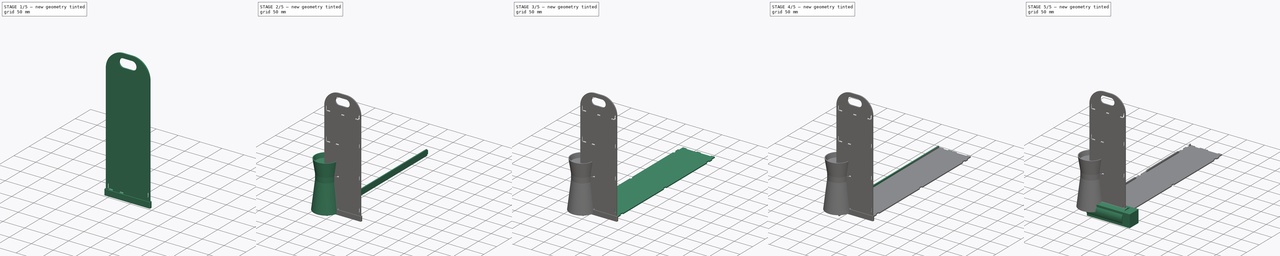
[diagram: build sequence overview — one tinted view per stage of 5, left to right]
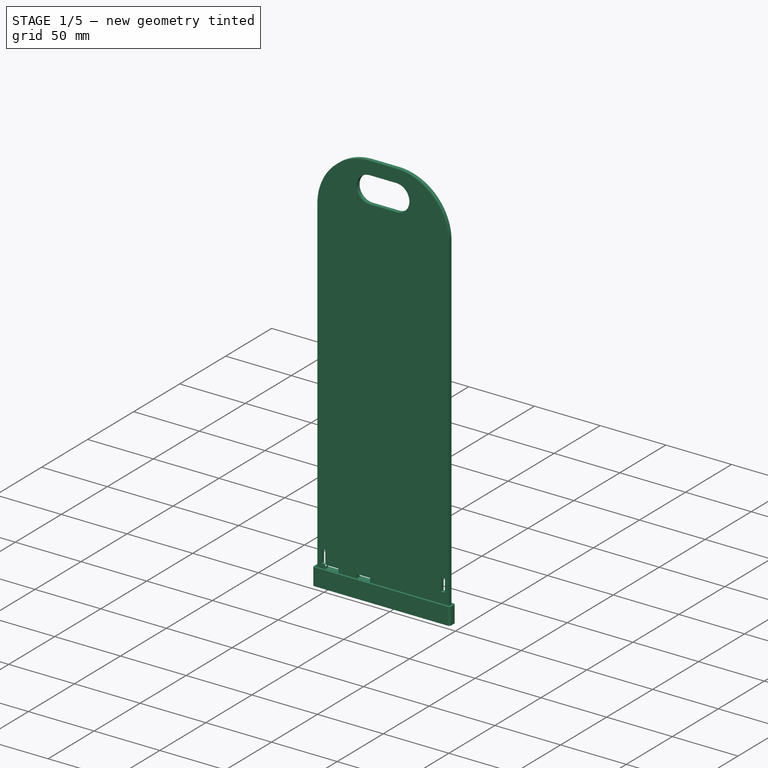
[diagram: stage 1 of 5 — iso view after this stage's code; geometry added in this stage tinted green]
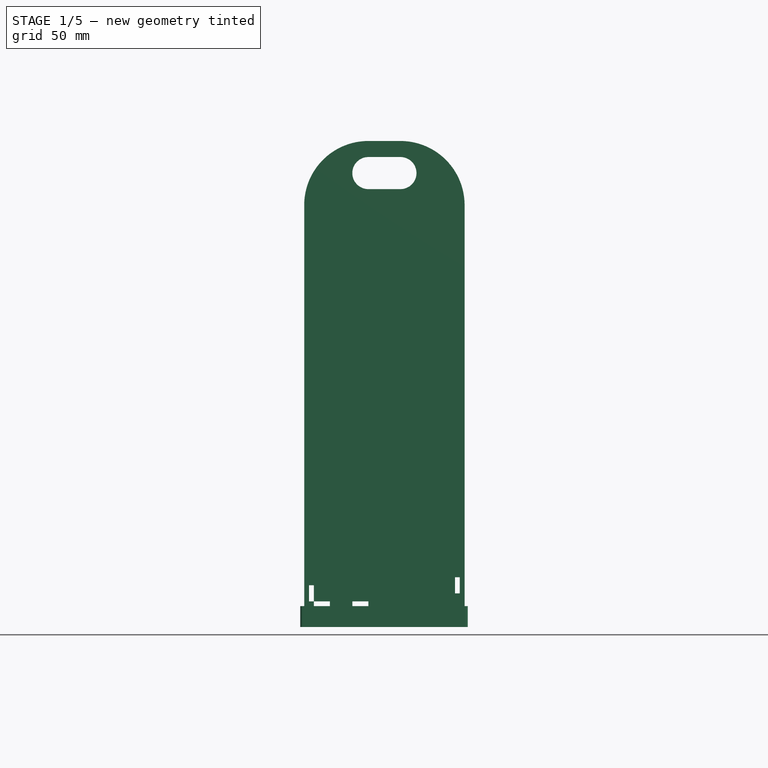
[diagram: stage 1 of 5 — front view after this stage's code; geometry added in this stage tinted green]
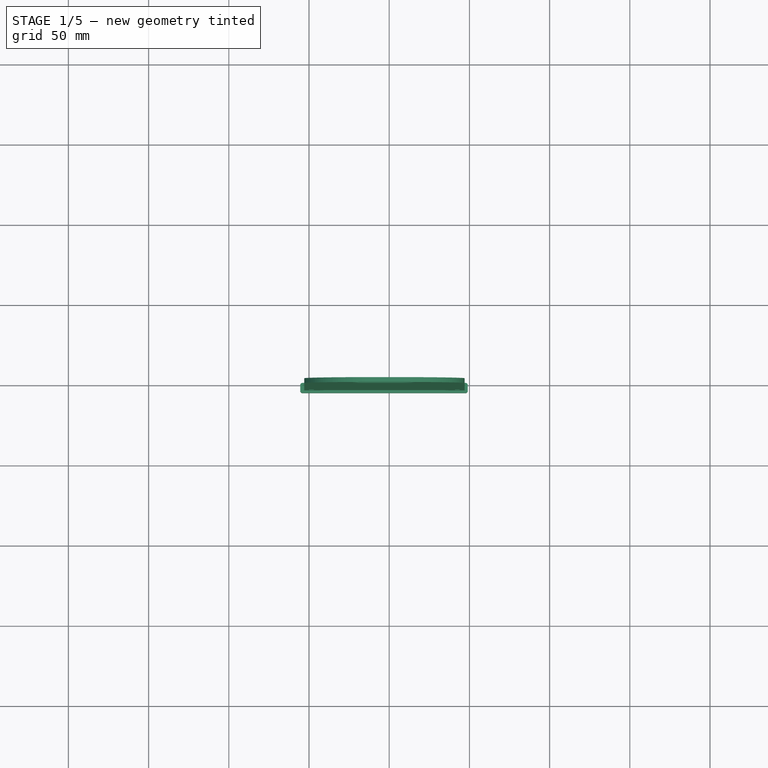
[diagram: stage 1 of 5 — top view after this stage's code; geometry added in this stage tinted green]
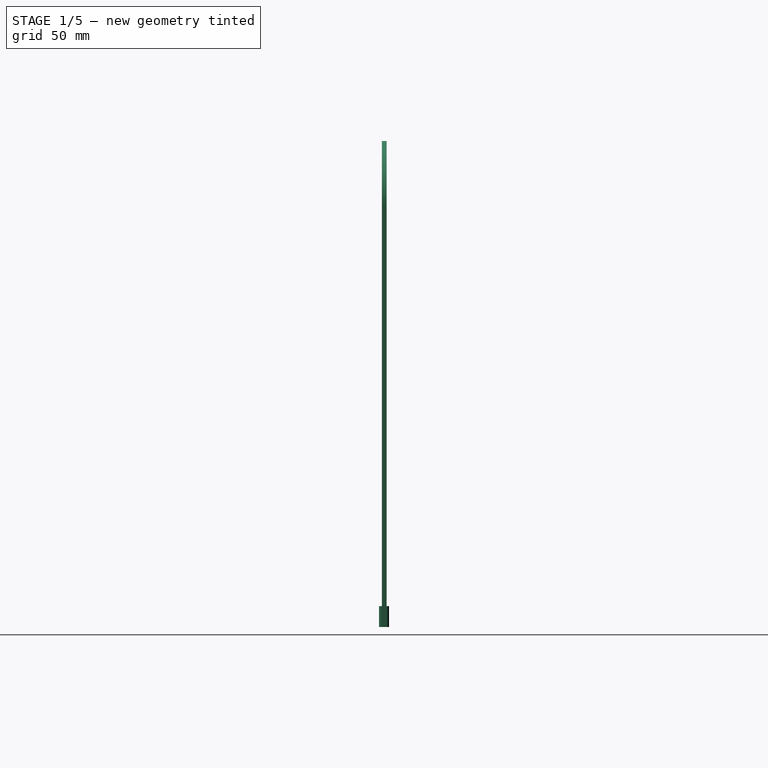
[diagram: stage 1 of 5 — right view after this stage's code; geometry added in this stage tinted green]
FCSTD DOCUMENT  (FreeCAD 1.0R39285 (Git))
Label: stockage_epices
License: All rights reserved
LicenseURL: https://en.wikipedia.org/wiki/All_rights_reserved
objects: Sketcher::SketchObject×17, PartDesign::Pad×9, PartDesign::Body×9, App::Link×8, PartDesign::Pocket×6, PartDesign::LinearPattern×5, App::FeaturePython×3, App::Part×2, PartDesign::Revolution×1
note: 101 computed .brp shape members not serialized (recipe doc carries the construction recipe); baked Part::Feature solids carry a one-line shape summary decoded from their .brp

FEATURE [PartDesign::Body] Body004  label="BotR1"
  AllowCompound = false
  Group = -> [Sketch006,Pad004,Sketch007,Pocket002,LinearPattern002]
  Origin = -> Origin004
  Placement = pos=(0,0,13) rot=(0,0,1;0rad)
  Tip = -> LinearPattern002
FEATURE [Sketcher::SketchObject] Sketch008
  ArcFitTolerance = 0
  FullyConstrained = true
  MakeInternals = false
  MapMode = 5
  Placement = pos=(0,0,0) rot=(1,0,0;1.5708rad)
  sketch-geometry (16):
    g0: LineSegment StartX=-3 StartY=260 StartZ=0 EndX=-3 EndY=0 EndZ=0
    g1: LineSegment StartX=-3 StartY=9e-16 StartZ=0 EndX=7 EndY=9e-16 EndZ=0
    g2: LineSegment StartX=97 StartY=0 StartZ=0 EndX=97 EndY=260 EndZ=0
    g3: LineSegment StartX=57 StartY=300 StartZ=0 EndX=37 EndY=300 EndZ=0
    g4: ArcOfCircle CenterX=14 CenterY=0 CenterZ=0 NormalX=0 NormalY=0 NormalZ=1 AngleXU=0 Radius=7 StartAngle=1.5708 EndAngle=3.14159
    g5: ArcOfCircle CenterX=80 CenterY=0 CenterZ=0 NormalX=0 NormalY=0 NormalZ=1 AngleXU=0 Radius=7 StartAngle=0 EndAngle=1.5708
    g6: LineSegment StartX=14 StartY=7 StartZ=0 EndX=80 EndY=7 EndZ=0
    g7: LineSegment StartX=87 StartY=0 StartZ=0 EndX=97 EndY=0 EndZ=0
    g8: ArcOfCircle CenterX=37 CenterY=260 CenterZ=0 NormalX=0 NormalY=0 NormalZ=1 AngleXU=0 Radius=40 StartAngle=1.5708 EndAngle=3.14159
    g9: GeomPoint [constr] X=-3 Y=300 Z=0
    g10: ArcOfCircle CenterX=57 CenterY=260 CenterZ=0 NormalX=0 NormalY=0 NormalZ=1 AngleXU=0 Radius=40 StartAngle=0 EndAngle=1.5708
    g11: GeomPoint [constr] X=97 Y=300 Z=0
    g12: ArcOfCircle CenterX=37 CenterY=280 CenterZ=0 NormalX=0 NormalY=0 NormalZ=1 AngleXU=0 Radius=10 StartAngle=1.5708 EndAngle=4.71239
    g13: ArcOfCircle CenterX=57 CenterY=280 CenterZ=0 NormalX=0 NormalY=0 NormalZ=1 AngleXU=0 Radius=10 StartAngle=4.71239 EndAngle=7.85398
    g14: LineSegment StartX=37 StartY=290 StartZ=0 EndX=57 EndY=290 EndZ=0
    g15: LineSegment StartX=37 StartY=270 StartZ=0 EndX=57 EndY=270 EndZ=0
  constraints (45):
    c: Coincident(g0,g1)
    c: Coincident(g7,g2)
    c: Vertical(g0)
    c: Vertical(g2)
    c: Horizontal(g1)
    c: Horizontal(g3)
    c: Distance(g1,g9) = 300
    c: DistanceX(g9,g11) = 100
    c: Distance(g-1,g0) = 3
    c: PointOnObject(g4,g1)
    c: PointOnObject(g5,g1)
    c: PointOnObject(g5,g7)
    c: Coincident(g6,g4)
    c: Coincident(g6,g5)
    c: Horizontal(g6)
    c: Vertical(g5,g5)
    c: Vertical(g4,g4)
    c: Coincident(g1,g4)
    c: PointOnObject(g7,g5)
    c: Equal(g1,g7)
    c: DistanceX(g1,g1) = 10
    c: Distance(g4,g4) = 7
    c: Horizontal(g7)
    c: Horizontal(g5,g5)
    c: PointOnObject(g-1,g1)
    c: PointOnObject(g9,g0)
    c: PointOnObject(g9,g3)
    c: Tangent(g0,g8) = -1.5708
    c: Tangent(g3,g8) = -1.5708
    c: PointOnObject(g11,g2)
    c: PointOnObject(g11,g3)
    c: Tangent(g2,g10) = -1.5708
    c: Tangent(g3,g10) = -1.5708
    c: Equal(g8,g10)
    c: Radius(g8) = 40
    c: Tangent(g12,g14) = 1.5708
    c: Tangent(g12,g15) = -1.5708
    c: Tangent(g13,g14) = 1.5708
    c: Tangent(g13,g15) = -1.5708
    c: Equal(g12,g13)
    c: Horizontal(g15)
    c: Radius(g12) = 10
    c: Vertical(g8,g12)
    c: Vertical(g13,g10)
    c: Distance(g3,g12) = 10
FEATURE [PartDesign::Pad] Pad005
  Direction = (0,-1,0)
  Length = 3
  Length2 = 10
  Placement = pos=(0,0,0) rot=(1,0,0;1.5708rad)
  Profile = -> Sketch008
  Refine = true
  Suppressed = false
  Type = 0
FEATURE [Sketcher::SketchObject] Sketch009
  ArcFitTolerance = 0
  ExternalGeometry = -> [Pad005]
  FullyConstrained = true
  MakeInternals = false
  MapMode = 5
  Placement = pos=(0,-3,0) rot=(1,0,0;1.5708rad)
  sketch-geometry (17):
    g0: LineSegment StartX=3 StartY=13 StartZ=0 EndX=3 EndY=23 EndZ=0
    g1: LineSegment StartX=3 StartY=23 StartZ=0 EndX=-1.3e-15 EndY=23 EndZ=0
    g2: LineSegment StartX=-1.3e-15 StartY=23 StartZ=0 EndX=-1.3e-15 EndY=13 EndZ=0
    g3: LineSegment StartX=-1.3e-15 StartY=13 StartZ=0 EndX=3 EndY=13 EndZ=0
    g4: LineSegment StartX=3 StartY=13 StartZ=0 EndX=3 EndY=10 EndZ=0
    g5: LineSegment StartX=3 StartY=10 StartZ=0 EndX=13 EndY=10 EndZ=0
    g6: LineSegment StartX=13 StartY=10 StartZ=0 EndX=13 EndY=13 EndZ=0
    g7: LineSegment StartX=13 StartY=13 StartZ=0 EndX=3 EndY=13 EndZ=0
    g8: LineSegment StartX=27 StartY=13 StartZ=0 EndX=27 EndY=10 EndZ=0
    g9: LineSegment StartX=27 StartY=10 StartZ=0 EndX=37 EndY=10 EndZ=0
    g10: LineSegment StartX=37 StartY=10 StartZ=0 EndX=37 EndY=13 EndZ=0
    g11: LineSegment StartX=37 StartY=13 StartZ=0 EndX=27 EndY=13 EndZ=0
    g12: LineSegment StartX=91 StartY=18 StartZ=0 EndX=94 EndY=18 EndZ=0
    g13: LineSegment StartX=94 StartY=18 StartZ=0 EndX=94 EndY=28 EndZ=0
    g14: LineSegment StartX=94 StartY=28 StartZ=0 EndX=91 EndY=28 EndZ=0
    g15: LineSegment StartX=91 StartY=28 StartZ=0 EndX=91 EndY=18 EndZ=0
    g16: LineSegment [constr] StartX=3 StartY=13 StartZ=0 EndX=91 EndY=28 EndZ=0
  constraints (50):
    c: Coincident(g0,g1)
    c: Coincident(g1,g2)
    c: Coincident(g2,g3)
    c: Coincident(g3,g0)
    c: Vertical(g0)
    c: Vertical(g2)
    c: Horizontal(g1)
    c: Horizontal(g3)
    c: Coincident(g4,g5)
    c: Coincident(g5,g6)
    c: Coincident(g6,g7)
    c: Coincident(g7,g4)
    c: Vertical(g4)
    c: Vertical(g6)
    c: Horizontal(g5)
    c: Horizontal(g7)
    c: Coincident(g4,g0)
    c: Coincident(g8,g9)
    c: Coincident(g9,g10)
    c: Coincident(g10,g11)
    c: Coincident(g11,g8)
    c: Vertical(g8)
    c: Vertical(g10)
    c: Horizontal(g9)
    c: Horizontal(g11)
    c: Coincident(g12,g13)
    c: Coincident(g13,g14)
    c: Coincident(g14,g15)
    c: Coincident(g15,g12)
    c: Horizontal(g12)
    c: Horizontal(g14)
    c: Vertical(g13)
    c: Vertical(g15)
    c: Equal(g0,g7)
    c: Equal(g7,g11)
    c: Equal(g11,g15)
    c: DistanceX(g11,g11) = 10
    c: DistanceX(g1,g1) = 3
    c: Equal(g1,g6)
    c: Equal(g6,g8)
    c: Equal(g8,g12)
    c: Horizontal(g6,g8)
    c: Distance(g1,g-4) = 3
    c: DistanceX(g6,g8) = 14
    c: Distance(g8,g-5) = 3
    c: Distance(g13,g-3) = 3
    c: DistanceY(g10,g14) = 15
    c: Coincident(g16,g0)
    c: Coincident(g16,g14)
    c: Angle(g16,g15) = 1.40196
FEATURE [PartDesign::Pocket] Pocket003
  BaseFeature = -> Pad005
  Direction = (0,1,0)
  Length = 5
  Length2 = 5
  Placement = pos=(0,0,0) rot=(1,0,0;1.5708rad)
  Profile = -> Sketch009
  Refine = true
  Suppressed = false
  Type = 2
FEATURE [PartDesign::Body] Body007  label="GratGrat"
  AllowCompound = false
  Group = -> [Sketch013,Revolution]
  Origin = -> Origin010
  Placement = pos=(47,53,250) rot=(0,0,1;0rad)
  Tip = -> Revolution
FEATURE [App::FeaturePython] Move  # WARN: FeaturePython — macro-defined, semantics opaque (R4)
  MoveType = 1
  MovementTransform = pos=(0,46,-1e-05) rot=(0,0,1;0rad)
FEATURE [App::FeaturePython] Exploded_View  # WARN: FeaturePython — macro-defined, semantics opaque (R4)
  Moves = -> [Move]
FEATURE [Sketcher::SketchObject] Sketch014
  ArcFitTolerance = 0
  AttachmentSupport = -> [Pocket004]
  ExternalGeometry = -> [Pocket004]
  FullyConstrained = true
  MakeInternals = false
  MapMode = 5
  Placement = pos=(0,-3,-3e-15) rot=(1,0,0;1.5708rad)
FEATURE [PartDesign::Body] Body005  label="Side"
  AllowCompound = false
  Group = -> [Sketch008,Pad005,Sketch009,Pocket003,LinearPattern003,Sketch011,Pocket004,Sketch014]
  Origin = -> Origin005
  Placement = pos=(0,0,3) rot=(0,0,1;0rad)
  Tip = -> Pocket004
FEATURE [Sketcher::SketchObject] Sketch015
  ArcFitTolerance = 1e-06
  AttachmentSupport = -> [XY_Plane012]
  FullyConstrained = true
  MakeInternals = false
  MapMode = 5
  sketch-geometry (14):
    g0: LineSegment StartX=-4 StartY=0 StartZ=0 EndX=-4 EndY=-3.3 EndZ=0
    g1: LineSegment StartX=-4 StartY=-3.3 StartZ=0 EndX=97.5 EndY=-3.3 EndZ=0
    g2: LineSegment StartX=97.5 StartY=-3.3 StartZ=0 EndX=97.5 EndY=0 EndZ=0
    g3: LineSegment StartX=97.5 StartY=0 StartZ=0 EndX=-4 EndY=0 EndZ=0
    g4: LineSegment StartX=-5.5 StartY=2e-16 StartZ=0 EndX=-5.5 EndY=-3.3 EndZ=0
    g5: LineSegment StartX=-4 StartY=-4.8 StartZ=0 EndX=97.5 EndY=-4.8 EndZ=0
    g6: LineSegment StartX=99 StartY=-3.3 StartZ=0 EndX=99 EndY=0 EndZ=0
    g7: LineSegment StartX=97.5 StartY=1.5 StartZ=0 EndX=-4 EndY=1.5 EndZ=0
    g8: ArcOfCircle CenterX=-4 CenterY=0 CenterZ=0 NormalX=0 NormalY=0 NormalZ=1 AngleXU=0 Radius=1.5 StartAngle=1.5708 EndAngle=3.14159
    g9: ArcOfCircle CenterX=-4 CenterY=-3.3 CenterZ=0 NormalX=0 NormalY=0 NormalZ=1 AngleXU=0 Radius=1.5 StartAngle=3.14159 EndAngle=4.71239
    g10: ArcOfCircle CenterX=97.5 CenterY=-3.3 CenterZ=0 NormalX=0 NormalY=0 NormalZ=1 AngleXU=0 Radius=1.5 StartAngle=4.71239 EndAngle=6.28319
    g11: ArcOfCircle CenterX=97.5 CenterY=1e-16 CenterZ=0 NormalX=0 NormalY=0 NormalZ=1 AngleXU=0 Radius=1.5 StartAngle=0 EndAngle=1.5708
    g12: GeomPoint [constr] X=-5.5 Y=1.5 Z=0
    g13: GeomPoint [constr] X=99 Y=-4.8 Z=0
  constraints (34):
    c: Coincident(g0,g1)
    c: Coincident(g1,g2)
    c: Coincident(g2,g3)
    c: Coincident(g3,g0)
    c: Vertical(g0)
    c: Vertical(g2)
    c: Horizontal(g1)
    c: Horizontal(g3)
    c: Distance(g0,g2) = 101.5
    c: Distance(g1,g3) = 3.3
    c: PointOnObject(g0,g-1)
    c: Tangent(g4,g8) = -1.5708
    c: Tangent(g4,g9) = -1.5708
    c: Tangent(g5,g9) = -1.5708
    c: Tangent(g5,g10) = -1.5708
    c: Tangent(g6,g10) = -1.5708
    c: Tangent(g6,g11) = -1.5708
    c: Tangent(g7,g11) = -1.5708
    c: Tangent(g7,g8) = -1.5708
    c: Vertical(g4)
    c: Vertical(g6)
    c: Horizontal(g5)
    c: Horizontal(g7)
    c: Equal(g8,g9)
    c: Equal(g9,g10)
    c: Equal(g10,g11)
    c: PointOnObject(g12,g4)
    c: PointOnObject(g12,g7)
    c: PointOnObject(g13,g5)
    c: PointOnObject(g13,g6)
    c: Radius(g9) = 1.5
    c: Coincident(g8,g0)
    c: Coincident(g10,g1)
    c: Distance(g-2,g0) = 4
FEATURE [PartDesign::Pad] Pad007
  Direction = (0,0,1)
  Length = 10
  Length2 = 10
  Profile = -> Sketch015
  ReferenceAxis = -> Sketch015 [N_Axis]
  Suppressed = false
  Type = 0
FEATURE [Sketcher::SketchObject] Sketch016
  ArcFitTolerance = 1e-06
  AttachmentSupport = -> [Pad007]
  ExternalGeometry = -> [Pad007]
  FullyConstrained = true
  MakeInternals = false
  MapMode = 5
  Placement = pos=(0,0,0) rot=(1,0,0;3.14159rad)
  sketch-geometry (10):
    g0: LineSegment StartX=-5.5 StartY=3.3 StartZ=0 EndX=-5.5 EndY=0 EndZ=0
    g1: LineSegment StartX=-4 StartY=-1.5 StartZ=0 EndX=97.5 EndY=-1.5 EndZ=0
    g2: LineSegment StartX=99 StartY=-1e-16 StartZ=0 EndX=99 EndY=3.3 EndZ=0
    g3: LineSegment StartX=97.5 StartY=4.8 StartZ=0 EndX=-4 EndY=4.8 EndZ=0
    g4: ArcOfCircle CenterX=-4 CenterY=3.3 CenterZ=0 NormalX=0 NormalY=0 NormalZ=1 AngleXU=0 Radius=1.5 StartAngle=1.5708 EndAngle=3.14159
    g5: ArcOfCircle CenterX=-4 CenterY=0 CenterZ=0 NormalX=0 NormalY=0 NormalZ=1 AngleXU=0 Radius=1.5 StartAngle=3.14159 EndAngle=4.71239
    g6: ArcOfCircle CenterX=97.5 CenterY=-1e-16 CenterZ=0 NormalX=0 NormalY=0 NormalZ=1 AngleXU=0 Radius=1.5 StartAngle=4.71239 EndAngle=6.28319
    g7: ArcOfCircle CenterX=97.5 CenterY=3.3 CenterZ=0 NormalX=0 NormalY=0 NormalZ=1 AngleXU=0 Radius=1.5 StartAngle=0 EndAngle=1.5708
    g8: GeomPoint [constr] X=-5.5 Y=4.8 Z=0
    g9: GeomPoint [constr] X=99 Y=-1.5 Z=0
  constraints (21):
    c: Tangent(g0,g4) = -1.5708
    c: Tangent(g0,g5) = -1.5708
    c: Tangent(g1,g5) = -1.5708
    c: Tangent(g1,g6) = -1.5708
    c: Tangent(g2,g6) = -1.5708
    c: Tangent(g2,g7) = -1.5708
    c: Tangent(g3,g7) = -1.5708
    c: Tangent(g3,g4) = -1.5708
    c: Vertical(g2)
    c: Horizontal(g1)
    c: Horizontal(g3)
    c: Equal(g4,g5)
    c: Equal(g5,g6)
    c: Equal(g6,g7)
    c: PointOnObject(g8,g0)
    c: PointOnObject(g8,g3)
    c: PointOnObject(g9,g1)
    c: PointOnObject(g9,g2)
    c: Coincident(g6,g-4)
    c: Coincident(g4,g-3)
    c: Coincident(g0,g-3)
FEATURE [PartDesign::Pad] Pad008
  BaseFeature = -> Pad007
  Direction = (0,0,-1)
  Length = 3
  Length2 = 10
  Profile = -> Sketch016
  ReferenceAxis = -> Sketch016 [N_Axis]
  Suppressed = false
  Type = 0
FEATURE [PartDesign::Body] Body008  label="Body"
  AllowCompound = false
  Group = -> [Sketch015,Pad007,Sketch016,Pad008]
  Origin = -> Origin012
  Tip = -> Pad008
FEATURE [App::Part] Part001
  Group = -> [Body008]
  Origin = -> Origin011
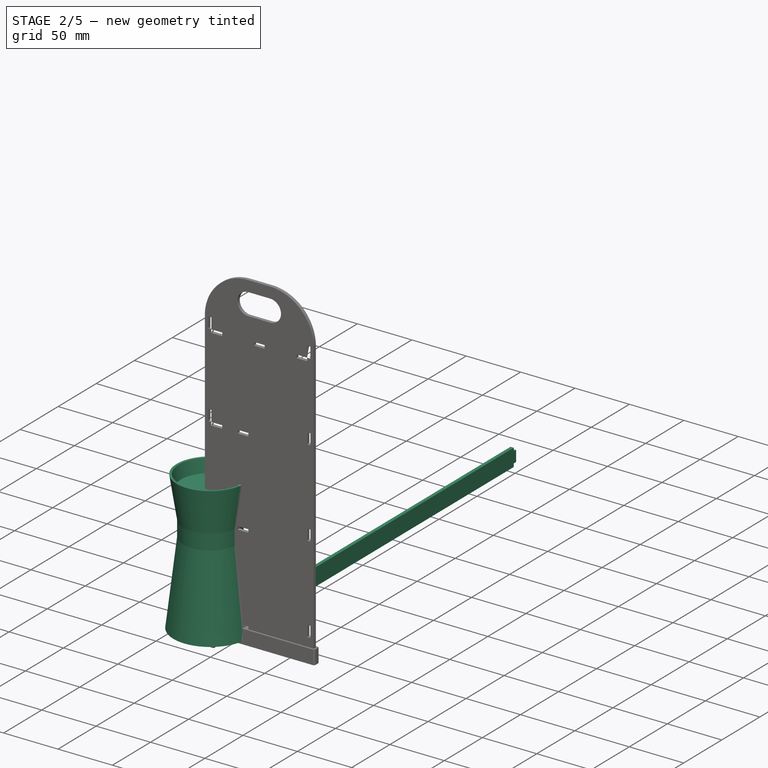
[diagram: stage 2 of 5 — iso view after this stage's code; geometry added in this stage tinted green]
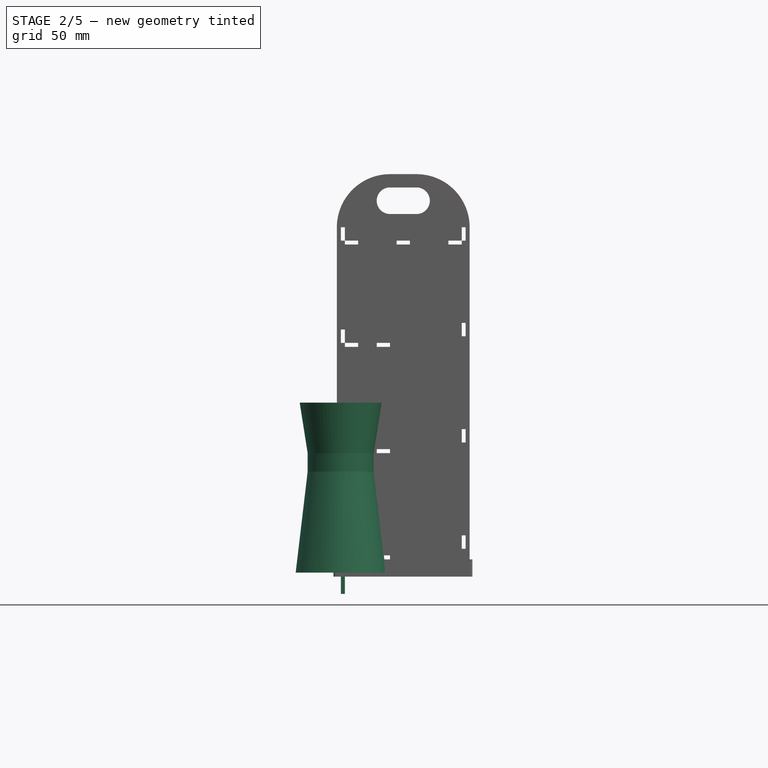
[diagram: stage 2 of 5 — front view after this stage's code; geometry added in this stage tinted green]
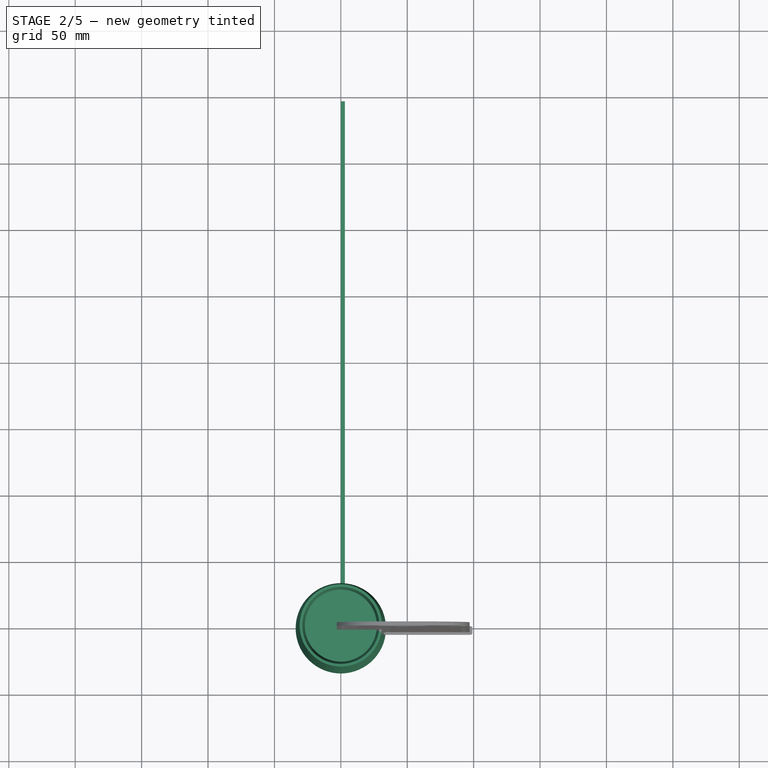
[diagram: stage 2 of 5 — top view after this stage's code; geometry added in this stage tinted green]
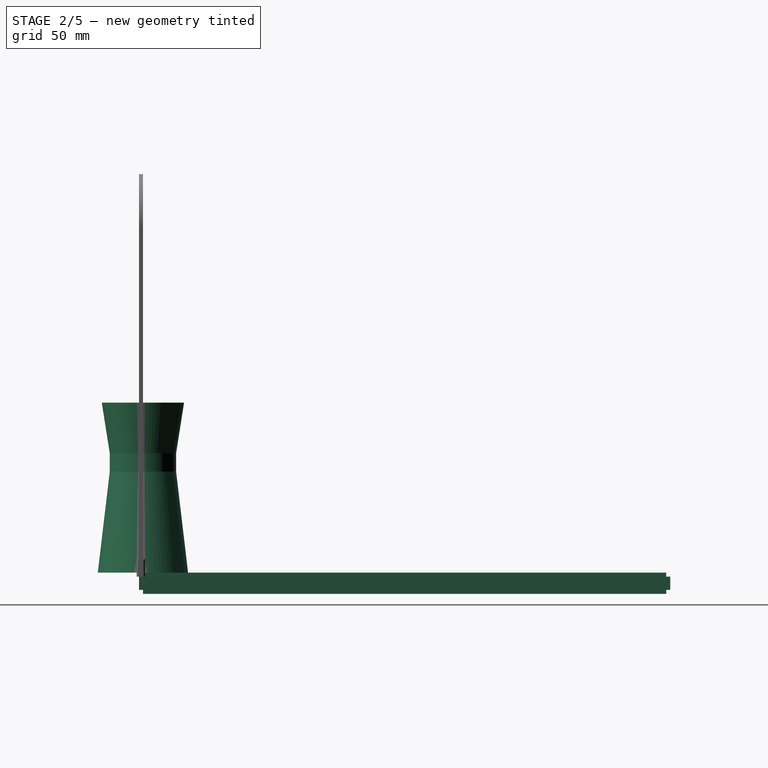
[diagram: stage 2 of 5 — right view after this stage's code; geometry added in this stage tinted green]
FEATURE [PartDesign::Body] Body002  label="Front_r1"
  AllowCompound = false
  Group = -> [Sketch002,Pad002,Sketch003,Pocket,LinearPattern]
  Origin = -> Origin002
  Placement = pos=(91,0,31) rot=(0,0,1;0rad)
  Tip = -> LinearPattern
FEATURE [Sketcher::SketchObject] Sketch004
  ArcFitTolerance = 0
  FullyConstrained = true
  MakeInternals = false
  MapMode = 5
  Placement = pos=(0,0,0) rot=(0.57735,0.57735,0.57735;2.0944rad)
  sketch-geometry (12):
    g0: LineSegment StartX=394 StartY=0 StartZ=0 EndX=0 EndY=0 EndZ=0
    g1: LineSegment StartX=394 StartY=-13 StartZ=0 EndX=397 EndY=-13 EndZ=0
    g2: LineSegment StartX=397 StartY=-13 StartZ=0 EndX=397 EndY=-3 EndZ=0
    g3: LineSegment StartX=397 StartY=-3 StartZ=0 EndX=394 EndY=-3 EndZ=0
    g4: LineSegment StartX=0 StartY=-3 StartZ=0 EndX=-3 EndY=-3 EndZ=0
    g5: LineSegment StartX=-3 StartY=-3 StartZ=0 EndX=-3 EndY=-13 EndZ=0
    g6: LineSegment StartX=-3 StartY=-13 StartZ=0 EndX=0 EndY=-13 EndZ=0
    g7: LineSegment StartX=0 StartY=-3 StartZ=0 EndX=0 EndY=0 EndZ=0
    g8: LineSegment StartX=0 StartY=-13 StartZ=0 EndX=0 EndY=-16 EndZ=0
    g9: LineSegment StartX=394 StartY=-3 StartZ=0 EndX=394 EndY=0 EndZ=0
    g10: LineSegment StartX=394 StartY=-13 StartZ=0 EndX=394 EndY=-16 EndZ=0
    g11: LineSegment StartX=0 StartY=-16 StartZ=0 EndX=394 EndY=-16 EndZ=0
  constraints (36):
    c: Horizontal(g0)
    c: Distance(g0,g0) = 394
    c: Coincident(g1,g2)
    c: Coincident(g2,g3)
    c: Horizontal(g1)
    c: Horizontal(g3)
    c: Vertical(g2)
    c: Distance(g2,g1) = 3
    c: Coincident(g4,g5)
    c: Coincident(g5,g6)
    c: Horizontal(g4)
    c: Horizontal(g6)
    c: Vertical(g5)
    c: Distance(g5,g4) = 3
    c: Equal(g5,g2)
    c: Horizontal(g1,g5)
    c: DistanceY(g5,g5) = 10
    c: DistanceY(g4,g0) = 3
    c: Coincident(g7,g4)
    c: Coincident(g7,g0)
    c: Vertical(g7)
    c: Coincident(g8,g6)
    c: PointOnObject(g8,g-2)
    c: Vertical(g8)
    c: Coincident(g9,g3)
    c: Coincident(g9,g0)
    c: Vertical(g9)
    c: Coincident(g10,g1)
    c: Vertical(g10)
    c: Equal(g1,g3)
    c: PointOnObject(g0,g-1)
    c: PointOnObject(g4,g-2)
    c: Equal(g7,g8)
    c: Equal(g9,g10)
    c: Coincident(g11,g8)
    c: Coincident(g11,g10)
FEATURE [PartDesign::Pad] Pad003
  Direction = (1,1e-16,-1e-16)
  Length = 3
  Length2 = 10
  Placement = pos=(0,0,0) rot=(0.57735,0.57735,0.57735;2.0944rad)
  Profile = -> Sketch004
  Refine = true
  Suppressed = false
  Type = 0
FEATURE [PartDesign::LinearPattern] LinearPattern003
  BaseFeature = -> Pocket003
  Direction = -> Sketch009 [V_Axis]
  Length = 160
  Mode = 0
  Occurrences = 3
  Offset = 80
  Originals = -> [Pocket003]
  Placement = pos=(0,0,0) rot=(1,0,0;1.5708rad)
  Refine = true
  Suppressed = false
  TransformMode = 0
FEATURE [App::Link] TopCover  label="TopCover001"
  LinkPlacement = pos=(3,0,247) rot=(0,0,1;0rad)
  LinkedObject = -> Body006
  Placement = pos=(3,0,247) rot=(0,0,1;0rad)
FEATURE [Sketcher::SketchObject] Sketch011
  ArcFitTolerance = 0
  ExternalGeometry = -> [LinearPattern003]
  FullyConstrained = true
  MakeInternals = false
  MapMode = 5
  Placement = pos=(0,-3,0) rot=(1,0,0;1.5708rad)
  sketch-geometry (22):
    g0: LineSegment StartX=3 StartY=250 StartZ=0 EndX=3 EndY=247 EndZ=0
    g1: LineSegment StartX=3 StartY=247 StartZ=0 EndX=13 EndY=247 EndZ=0
    g2: LineSegment StartX=13 StartY=247 StartZ=0 EndX=13 EndY=250 EndZ=0
    g3: LineSegment StartX=13 StartY=250 StartZ=0 EndX=3 EndY=250 EndZ=0
    g4: LineSegment StartX=42 StartY=250 StartZ=0 EndX=42 EndY=247 EndZ=0
    g5: LineSegment StartX=42 StartY=247 StartZ=0 EndX=52 EndY=247 EndZ=0
    g6: LineSegment StartX=52 StartY=247 StartZ=0 EndX=52 EndY=250 EndZ=0
    g7: LineSegment StartX=52 StartY=250 StartZ=0 EndX=42 EndY=250 EndZ=0
    g8: LineSegment StartX=81 StartY=247 StartZ=0 EndX=81 EndY=250 EndZ=0
    g9: LineSegment StartX=81 StartY=250 StartZ=0 EndX=91 EndY=250 EndZ=0
    g10: LineSegment StartX=91 StartY=250 StartZ=0 EndX=91 EndY=247 EndZ=0
    g11: LineSegment StartX=91 StartY=247 StartZ=0 EndX=81 EndY=247 EndZ=0
    g12: LineSegment [constr] StartX=13 StartY=250 StartZ=0 EndX=42 EndY=250 EndZ=0
    g13: LineSegment [constr] StartX=52 StartY=250 StartZ=0 EndX=81 EndY=250 EndZ=0
    g14: LineSegment StartX=3 StartY=250 StartZ=0 EndX=3 EndY=260 EndZ=0
    g15: LineSegment StartX=3 StartY=260 StartZ=0 EndX=-1.3e-15 EndY=260 EndZ=0
    g16: LineSegment StartX=-1.3e-15 StartY=260 StartZ=0 EndX=-1.3e-15 EndY=250 EndZ=0
    g17: LineSegment StartX=-1.3e-15 StartY=250 StartZ=0 EndX=3 EndY=250 EndZ=0
    g18: LineSegment StartX=91 StartY=250 StartZ=0 EndX=94 EndY=250 EndZ=0
    g19: LineSegment StartX=94 StartY=250 StartZ=0 EndX=94 EndY=260 EndZ=0
    g20: LineSegment StartX=94 StartY=260 StartZ=0 EndX=91 EndY=260 EndZ=0
    g21: LineSegment StartX=91 StartY=260 StartZ=0 EndX=91 EndY=250 EndZ=0
  constraints (63):
    c: Coincident(g0,g1)
    c: Coincident(g1,g2)
    c: Coincident(g2,g3)
    c: Coincident(g3,g0)
    c: Vertical(g0)
    c: Vertical(g2)
    c: Horizontal(g1)
    c: Horizontal(g3)
    c: Distance(g0,g2) = 10
    c: Distance(g1,g3) = 3
    c: Coincident(g4,g5)
    c: Coincident(g5,g6)
    c: Coincident(g6,g7)
    c: Coincident(g7,g4)
    c: Vertical(g4)
    c: Vertical(g6)
    c: Horizontal(g5)
    c: Horizontal(g7)
    c: Distance(g4,g6) = 10
    c: Distance(g5,g7) = 3
    c: Coincident(g8,g9)
    c: Coincident(g9,g10)
    c: Coincident(g10,g11)
    c: Coincident(g11,g8)
    c: Vertical(g8)
    c: Vertical(g10)
    c: Horizontal(g9)
    c: Horizontal(g11)
    c: Distance(g8,g10) = 10
    c: Distance(g9,g11) = 3
    c: Horizontal(g2,g4)
    c: Distance(g0,g-3) = 6
    c: Distance(g10,g-4) = 6
    c: DistanceY(g-5,g9) = 62
    c: DistanceY(g-6,g-7) = 62
    c: Horizontal(g6,g8)
    c: Coincident(g12,g2)
    c: Coincident(g12,g4)
    c: Coincident(g13,g6)
    c: Coincident(g13,g8)
    c: Equal(g13,g12)
    c: Coincident(g14,g15)
    c: Coincident(g15,g16)
    c: Coincident(g16,g17)
    c: Coincident(g17,g14)
    c: Vertical(g14)
    c: Vertical(g16)
    c: Horizontal(g15)
    c: Horizontal(g17)
    c: Coincident(g14,g0)
    c: DistanceY(g16,g16) = 10
    c: DistanceX(g15,g15) = 3
    c: Coincident(g18,g19)
    c: Coincident(g19,g20)
    c: Coincident(g20,g21)
    c: Coincident(g21,g18)
    c: Horizontal(g18)
    c: Horizontal(g20)
    c: Vertical(g19)
    c: Vertical(g21)
    c: Distance(g19,g21) = 3
    c: Distance(g18,g20) = 10
    c: Coincident(g18,g9)
FEATURE [PartDesign::Pocket] Pocket004
  BaseFeature = -> LinearPattern003
  Direction = (0,1,0)
  Length = 5
  Length2 = 5
  Placement = pos=(0,0,0) rot=(1,0,0;1.5708rad)
  Profile = -> Sketch011
  Refine = true
  Suppressed = false
  Type = 2
FEATURE [PartDesign::Body] Body006  label="TopCover"
  AllowCompound = false
  Group = -> [Sketch010,Pad006,Sketch012,Pocket005,LinearPattern004]
  Origin = -> Origin009
  Placement = pos=(3,0,13) rot=(0,0,1;0rad)
  Tip = -> LinearPattern004
FEATURE [App::Link] BackR1  label="BackR002"
  LinkPlacement = pos=(0,0,263) rot=(0,0,1;0rad)
  LinkedObject = -> Body003
  Placement = pos=(0,0,263) rot=(0,0,1;0rad)
FEATURE [App::Link] BackR002  label="BackR003"
  LinkPlacement = pos=(91,0,263) rot=(0,0,1;0rad)
  LinkedObject = -> Body003
  Placement = pos=(91,0,263) rot=(0,0,1;0rad)
FEATURE [Sketcher::SketchObject] Sketch013
  ArcFitTolerance = 0
  FullyConstrained = true
  MakeInternals = false
  MapMode = 5
  Placement = pos=(0,0,0) rot=(1,0,0;1.5708rad)
  sketch-geometry (8):
    g0: LineSegment StartX=0 StartY=0 StartZ=0 EndX=-34 EndY=0 EndZ=0
    g1: LineSegment StartX=-34 StartY=0 StartZ=0 EndX=-25 EndY=76 EndZ=0
    g2: LineSegment StartX=-25 StartY=76 StartZ=0 EndX=-25 EndY=90 EndZ=0
    g3: LineSegment StartX=-25 StartY=90 StartZ=0 EndX=-31 EndY=128 EndZ=0
    g4: LineSegment StartX=-31 StartY=128 StartZ=0 EndX=-29 EndY=128 EndZ=0
    g5: LineSegment StartX=-29 StartY=128 StartZ=0 EndX=-27.1053 EndY=116 EndZ=0
    g6: LineSegment StartX=-27.1053 StartY=116 StartZ=0 EndX=0 EndY=116 EndZ=0
    g7: LineSegment StartX=0 StartY=116 StartZ=0 EndX=0 EndY=0 EndZ=0
  constraints (23):
    c: Coincident(g-1,g0)
    c: Horizontal(g0)
    c: Coincident(g0,g1)
    c: Coincident(g1,g2)
    c: Vertical(g2)
    c: Coincident(g2,g3)
    c: Coincident(g3,g4)
    c: Horizontal(g4)
    c: Coincident(g4,g5)
    c: Coincident(g5,g6)
    c: Horizontal(g6)
    c: Coincident(g6,g7)
    c: Coincident(g7,g0)
    c: Vertical(g7)
    c: DistanceX(g0,g0) = 34
    c: Distance(g7,g2) = 25
    c: Distance(g3,g-2) = 31
    c: Parallel(g5,g3)
    c: DistanceY(g2,g2) = 14
    c: DistanceY(g0,g1) = 76
    c: Distance(g4,g4) = 2
    c: DistanceY(g0,g3) = 128
    c: DistanceY(g6,g4) = 12
FEATURE [PartDesign::Revolution] Revolution
  Angle = 360
  Angle2 = 60
  Axis = (0,0,1)
  Base = (0,0,0)
  Placement = pos=(0,0,0) rot=(1,0,0;1.5708rad)
  Profile = -> Sketch013
  ReferenceAxis = -> Sketch013 [V_Axis]
  Refine = true
  Suppressed = false
  Type = 0
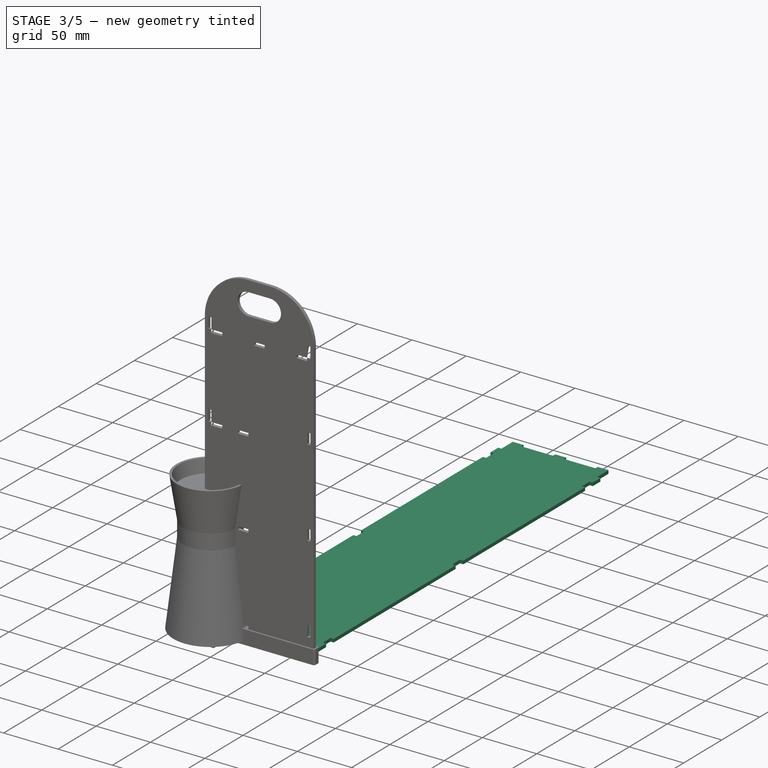
[diagram: stage 3 of 5 — iso view after this stage's code; geometry added in this stage tinted green]
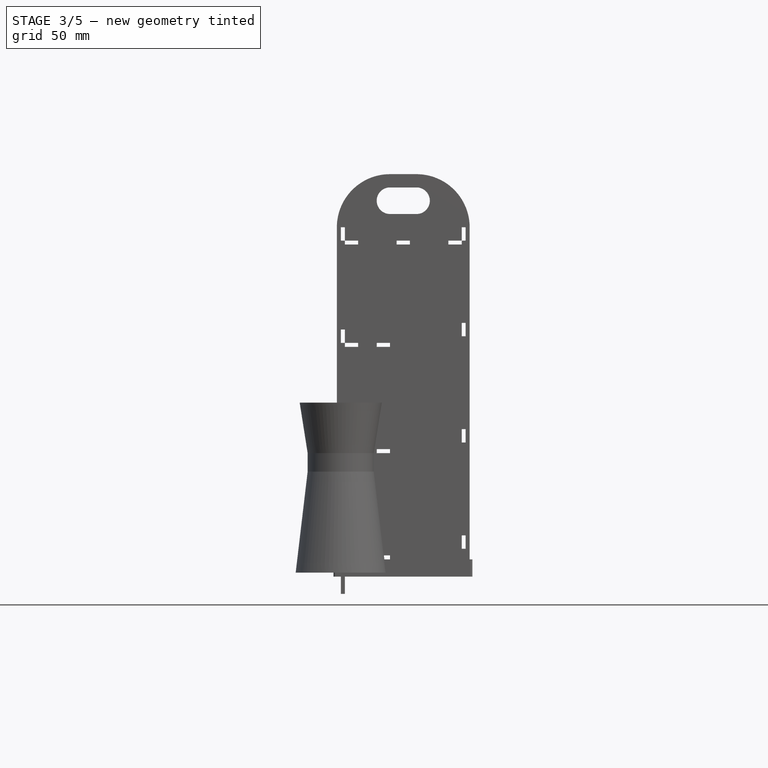
[diagram: stage 3 of 5 — front view after this stage's code; geometry added in this stage tinted green]
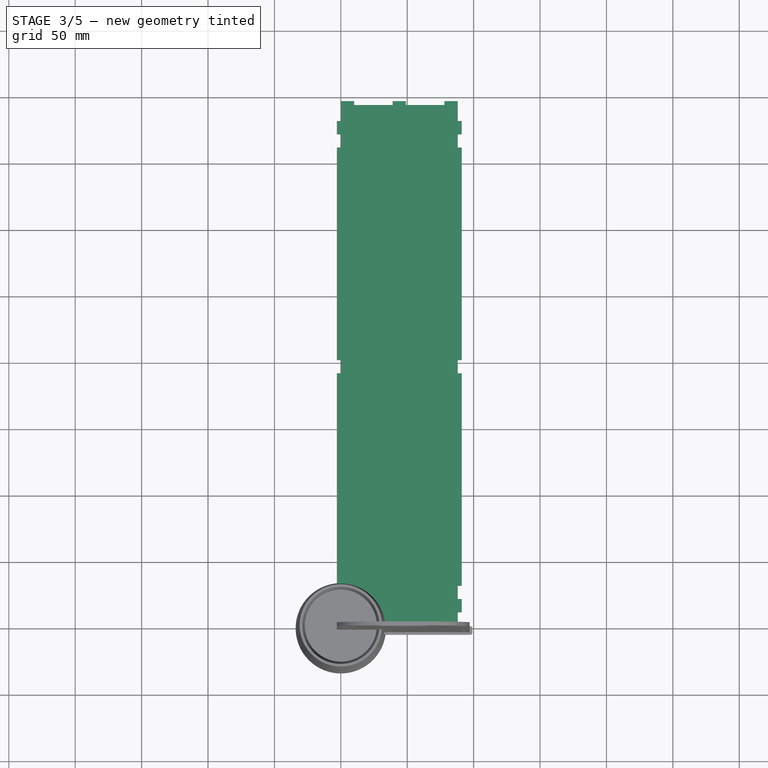
[diagram: stage 3 of 5 — top view after this stage's code; geometry added in this stage tinted green]
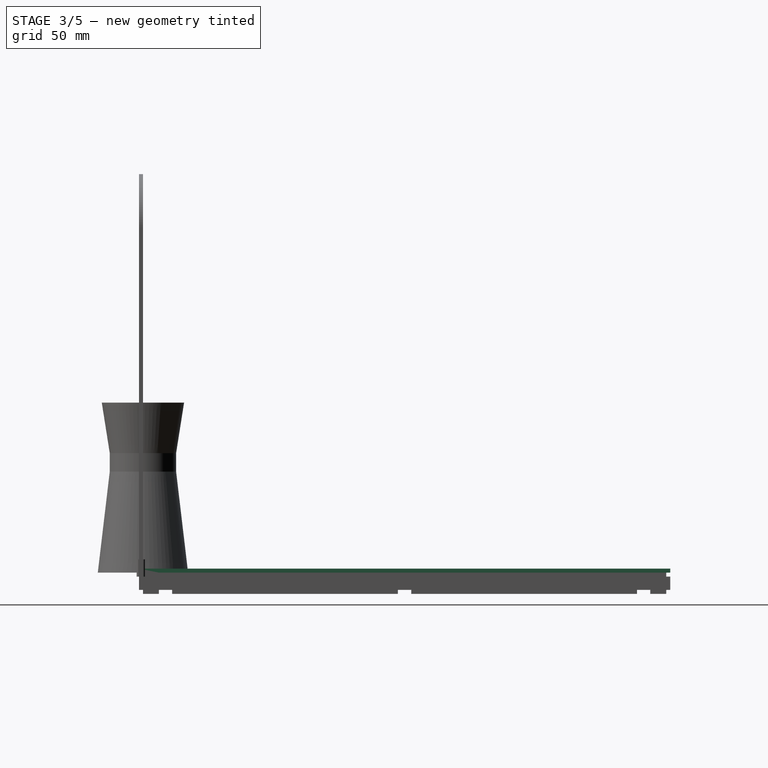
[diagram: stage 3 of 5 — right view after this stage's code; geometry added in this stage tinted green]
FEATURE [Sketcher::SketchObject] Sketch005
  ArcFitTolerance = 0
  ExternalGeometry = -> [Pad003]
  FullyConstrained = true
  MakeInternals = false
  MapMode = 5
  Placement = pos=(3,-1e-15,0) rot=(0.57735,0.57735,0.57735;2.0944rad)
  sketch-geometry (4):
    g0: LineSegment StartX=12 StartY=-16 StartZ=0 EndX=22 EndY=-16 EndZ=0
    g1: LineSegment StartX=22 StartY=-16 StartZ=0 EndX=22 EndY=-13 EndZ=0
    g2: LineSegment StartX=22 StartY=-13 StartZ=0 EndX=12 EndY=-13 EndZ=0
    g3: LineSegment StartX=12 StartY=-13 StartZ=0 EndX=12 EndY=-16 EndZ=0
  constraints (12):
    c: Coincident(g0,g1)
    c: Coincident(g1,g2)
    c: Coincident(g2,g3)
    c: Coincident(g3,g0)
    c: Horizontal(g0)
    c: Horizontal(g2)
    c: Vertical(g1)
    c: Vertical(g3)
    c: Distance(g1,g3) = 10
    c: Distance(g0,g2) = 3
    c: PointOnObject(g0,g-3)
    c: DistanceX(g-1,g2) = 12
FEATURE [PartDesign::Pocket] Pocket001
  BaseFeature = -> Pad003
  Direction = (-1,-1e-16,1e-16)
  Length = 5
  Length2 = 5
  Placement = pos=(0,0,0) rot=(0.57735,0.57735,0.57735;2.0944rad)
  Profile = -> Sketch005
  Refine = true
  Suppressed = false
  Type = 2
FEATURE [PartDesign::LinearPattern] LinearPattern001
  BaseFeature = -> Pocket001
  Direction = -> Sketch005 [H_Axis]
  Length = 360
  Mode = 0
  Occurrences = 3
  Offset = 180
  Originals = -> [Pocket001]
  Placement = pos=(0,0,0) rot=(0.57735,0.57735,0.57735;2.0944rad)
  Refine = true
  Suppressed = false
  TransformMode = 0
FEATURE [App::Part] Part  label="Rack"
  Group = -> [Body003,Body002,Body004]
  Origin = -> Origin007
FEATURE [App::Link] Side  label="SideLeft"
  LinkedObject = -> Body005
FEATURE [App::FeaturePython] GroundedJoint  # Assembly grounded joint (typed FeaturePython)
  ObjectToGround = -> Side
FEATURE [App::Link] Rack  label="RackBot"
  LinkPlacement = pos=(0,0,-3) rot=(0,0,1;0rad)
  LinkedObject = -> Part
  Placement = pos=(0,0,-3) rot=(0,0,1;0rad)
FEATURE [App::Link] Side001  label="SideRight"
  LinkPlacement = pos=(-3.8147e-06,397,-3.03388e-05) rot=(0,0,1;0rad)
  LinkedObject = -> Body005
  Placement = pos=(-3.8147e-06,397,-3.03388e-05) rot=(0,0,1;0rad)
FEATURE [App::Link] Rack001  label="RackMid"
  LinkPlacement = pos=(0,0,77) rot=(0,0,1;0rad)
  LinkedObject = -> Part
  Placement = pos=(0,0,77) rot=(0,0,1;0rad)
FEATURE [App::Link] Rack002  label="RackTop"
  LinkPlacement = pos=(0,-1.52588e-05,157) rot=(0,0,1;0rad)
  LinkedObject = -> Part
  Placement = pos=(0,-1.52588e-05,157) rot=(0,0,1;0rad)
FEATURE [Sketcher::SketchObject] Sketch010
  ArcFitTolerance = 0
  FullyConstrained = true
  MakeInternals = false
  MapMode = 5
  sketch-geometry (28):
    g0: LineSegment StartX=0 StartY=-3 StartZ=0 EndX=10 EndY=-3 EndZ=0
    g1: LineSegment StartX=10 StartY=-3 StartZ=0 EndX=10 EndY=0 EndZ=0
    g2: LineSegment StartX=49 StartY=0 StartZ=0 EndX=78 EndY=0 EndZ=0
    g3: LineSegment StartX=78 StartY=0 StartZ=0 EndX=78 EndY=-3 EndZ=0
    g4: LineSegment StartX=78 StartY=-3 StartZ=0 EndX=88 EndY=-3 EndZ=0
    g5: LineSegment StartX=88 StartY=-3 StartZ=0 EndX=88 EndY=12 EndZ=0
    g6: LineSegment StartX=91 StartY=12 StartZ=0 EndX=91 EndY=382 EndZ=0
    g7: LineSegment StartX=91 StartY=382 StartZ=0 EndX=88 EndY=382 EndZ=0
    g8: LineSegment StartX=88 StartY=382 StartZ=0 EndX=88 EndY=397 EndZ=0
    g9: LineSegment StartX=88 StartY=397 StartZ=0 EndX=78 EndY=397 EndZ=0
    g10: LineSegment StartX=78 StartY=397 StartZ=0 EndX=78 EndY=394 EndZ=0
    g11: LineSegment StartX=78 StartY=394 StartZ=0 EndX=49 EndY=394 EndZ=0
    g12: LineSegment StartX=10 StartY=394 StartZ=0 EndX=10 EndY=397 EndZ=0
    g13: LineSegment StartX=10 StartY=397 StartZ=0 EndX=0 EndY=397 EndZ=0
    g14: LineSegment StartX=0 StartY=397 StartZ=0 EndX=0 EndY=382 EndZ=0
    g15: LineSegment StartX=0 StartY=382 StartZ=0 EndX=-3 EndY=382 EndZ=0
    g16: LineSegment StartX=-3 StartY=12 StartZ=0 EndX=-3 EndY=382 EndZ=0
    g17: LineSegment StartX=39 StartY=394 StartZ=0 EndX=39 EndY=397 EndZ=0
    g18: LineSegment StartX=39 StartY=397 StartZ=0 EndX=49 EndY=397 EndZ=0
    g19: LineSegment StartX=49 StartY=397 StartZ=0 EndX=49 EndY=394 EndZ=0
    g20: LineSegment StartX=39 StartY=394 StartZ=0 EndX=10 EndY=394 EndZ=0
    g21: LineSegment StartX=39 StartY=0 StartZ=0 EndX=39 EndY=-3 EndZ=0
    g22: LineSegment StartX=39 StartY=-3 StartZ=0 EndX=49 EndY=-3 EndZ=0
    g23: LineSegment StartX=49 StartY=-3 StartZ=0 EndX=49 EndY=0 EndZ=0
    g24: LineSegment StartX=10 StartY=0 StartZ=0 EndX=39 EndY=0 EndZ=0
    g25: LineSegment StartX=-3 StartY=12 StartZ=0 EndX=0 EndY=12 EndZ=0
    g26: LineSegment StartX=0 StartY=12 StartZ=0 EndX=0 EndY=-3 EndZ=0
    g27: LineSegment StartX=88 StartY=12 StartZ=0 EndX=91 EndY=12 EndZ=0
  constraints (88):
    c: Horizontal(g0)
    c: Coincident(g0,g1)
    c: PointOnObject(g1,g-1)
    c: Vertical(g1)
    c: PointOnObject(g2,g-1)
    c: Coincident(g2,g3)
    c: Vertical(g3)
    c: Coincident(g3,g4)
    c: Horizontal(g4)
    c: Coincident(g4,g5)
    c: Vertical(g6)
    c: Coincident(g6,g7)
    c: Horizontal(g7)
    c: Coincident(g7,g8)
    c: Coincident(g8,g9)
    c: Horizontal(g9)
    c: Coincident(g9,g10)
    c: Vertical(g10)
    c: Coincident(g10,g11)
    c: Horizontal(g11)
    c: Coincident(g20,g12)
    c: Vertical(g12)
    c: Coincident(g12,g13)
    c: Horizontal(g13)
    c: Coincident(g13,g14)
    c: Vertical(g14)
    c: Coincident(g14,g15)
    c: Horizontal(g15)
    c: Vertical(g8)
    c: Vertical(g5)
    c: Coincident(g16,g15)
    c: Vertical(g16)
    c: Equal(g12,g10)
    c: Equal(g10,g1)
    c: Equal(g1,g3)
    c: DistanceX(g0,g0) = 10
    c: Equal(g0,g4)
    c: Equal(g4,g13)
    c: Equal(g13,g9)
    c: Equal(g14,g8)
    c: DistanceY(g0,g13) = 400
    c: DistanceX(g15,g6) = 94
    c: PointOnObject(g14,g-2)
    c: Equal(g15,g7)
    c: DistanceX(g16,g-1) = 3
    c: PointOnObject(g17,g20)
    c: Vertical(g17)
    c: Coincident(g17,g18)
    c: Horizontal(g18)
    c: Coincident(g18,g19)
    c: Vertical(g19)
    c: Coincident(g11,g19)
    c: PointOnObject(g20,g17)
    c: Equal(g12,g17)
    c: Horizontal(g20)
    c: Equal(g13,g18)
    c: Equal(g19,g17)
    c: Equal(g20,g11)
    c: DistanceX(g12,g17) = 29
    c: Coincident(g21,g22)
    c: Coincident(g22,g23)
    c: Vertical(g21)
    c: Vertical(g23)
    c: Horizontal(g22)
    c: Equal(g23,g3)
    c: Equal(g22,g4)
    c: Coincident(g24,g1)
    c: Coincident(g24,g21)
    c: Horizontal(g24)
    c: Coincident(g23,g2)
    c: Horizontal(g2)
    c: Equal(g24,g2)
    c: DistanceX(g2,g2) = 29
    c: DistanceX(g24,g24) = 29
    c: Coincident(g25,g16)
    c: PointOnObject(g25,g-2)
    c: Horizontal(g25)
    c: Coincident(g26,g25)
    c: Coincident(g26,g0)
    c: Vertical(g26)
    c: DistanceY(g26,g26) = 15
    c: Distance(g1,g1) = 3
    c: Coincident(g27,g5)
    c: Coincident(g27,g6)
    c: Horizontal(g27)
    c: Horizontal(g25,g5)
    c: Equal(g27,g25)
    c: DistanceY(g14,g14) = 15
FEATURE [PartDesign::Pad] Pad006
  Direction = (0,0,1)
  Length = 3
  Length2 = 10
  Profile = -> Sketch010
  Refine = true
  Suppressed = false
  Type = 0
FEATURE [Sketcher::SketchObject] Sketch012
  ArcFitTolerance = 0
  ExternalGeometry = -> [Pad006]
  FullyConstrained = false
  MakeInternals = false
  MapMode = 5
  Placement = pos=(0,0,3) rot=(0,0,1;0rad)
  sketch-geometry (8):
    g0: LineSegment StartX=0 StartY=22 StartZ=0 EndX=-3 EndY=22 EndZ=0
    g1: LineSegment StartX=-3 StartY=22 StartZ=0 EndX=-3 EndY=32 EndZ=0
    g2: LineSegment StartX=-3 StartY=32 StartZ=0 EndX=0 EndY=32 EndZ=0
    g3: LineSegment StartX=0 StartY=32 StartZ=0 EndX=0 EndY=22 EndZ=0
    g4: LineSegment StartX=91 StartY=22 StartZ=0 EndX=91 EndY=32 EndZ=0
    g5: LineSegment StartX=91 StartY=32 StartZ=0 EndX=88 EndY=32 EndZ=0
    g6: LineSegment StartX=88 StartY=32 StartZ=0 EndX=88 EndY=22 EndZ=0
    g7: LineSegment StartX=88 StartY=22 StartZ=0 EndX=91 EndY=22 EndZ=0
  constraints (24):
    c: Coincident(g0,g1)
    c: Coincident(g1,g2)
    c: Coincident(g2,g3)
    c: Coincident(g3,g0)
    c: Horizontal(g0)
    c: Horizontal(g2)
    c: Vertical(g1)
    c: Vertical(g3)
    c: Distance(g1,g3) = 3
    c: Distance(g0,g2) = 10
    c: DistanceY(g-4,g0) = 10
    c: Coincident(g4,g5)
    c: Coincident(g5,g6)
    c: Coincident(g6,g7)
    c: Coincident(g7,g4)
    c: Vertical(g4)
    c: Vertical(g6)
    c: Horizontal(g5)
    c: Horizontal(g7)
    c: Distance(g4,g6) = 3
    c: Distance(g5,g7) = 10
    c: PointOnObject(g4,g-5)
    c: DistanceY(g-5,g4) = 10
    c: PointOnObject(g0,g-4)
FEATURE [PartDesign::Pocket] Pocket005
  BaseFeature = -> Pad006
  Direction = (0,0,-1)
  Length = 5
  Length2 = 5
  Profile = -> Sketch012
  Refine = true
  Suppressed = false
  Type = 2
FEATURE [PartDesign::LinearPattern] LinearPattern004
  BaseFeature = -> Pocket005
  Direction = -> Sketch012 [V_Axis]
  Length = 340
  Mode = 0
  Occurrences = 3
  Offset = 170
  Originals = -> [Pocket005]
  Refine = true
  Suppressed = false
  TransformMode = 0
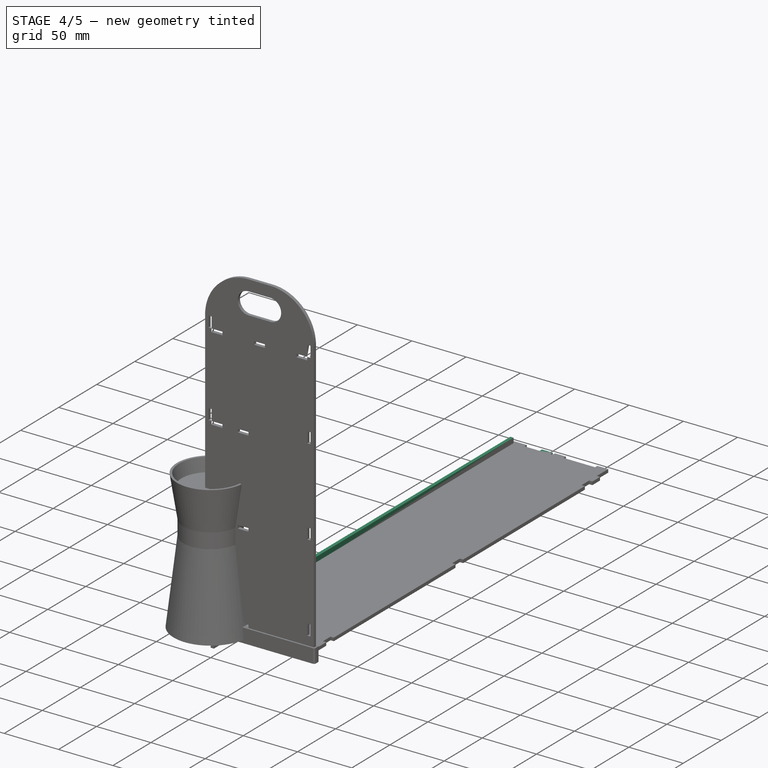
[diagram: stage 4 of 5 — iso view after this stage's code; geometry added in this stage tinted green]
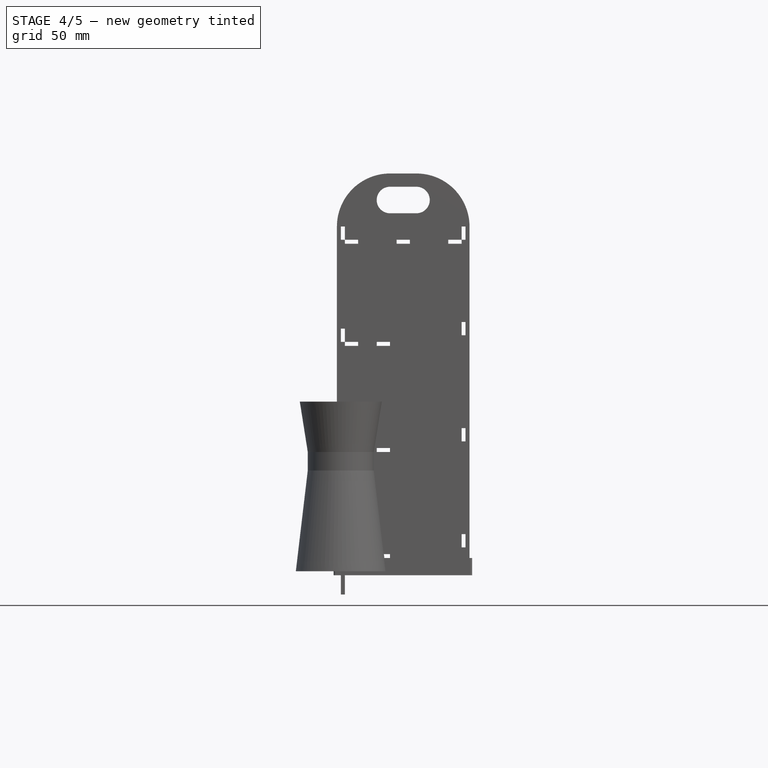
[diagram: stage 4 of 5 — front view after this stage's code; geometry added in this stage tinted green]
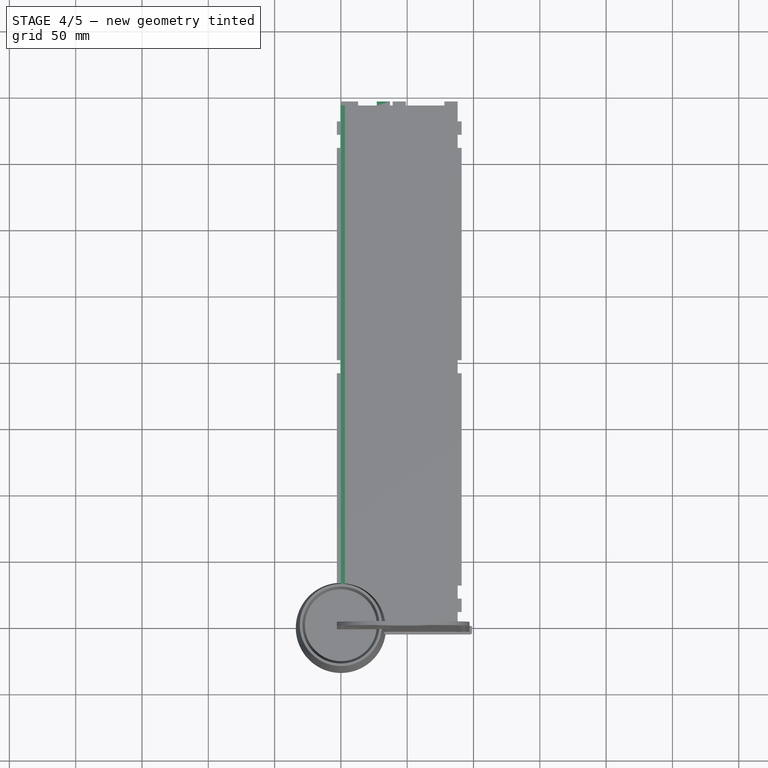
[diagram: stage 4 of 5 — top view after this stage's code; geometry added in this stage tinted green]
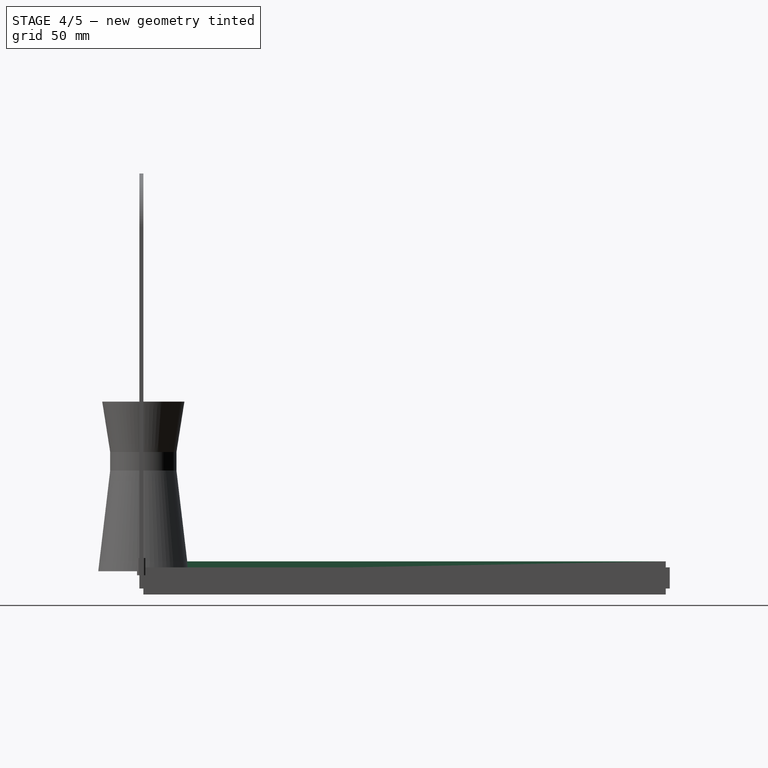
[diagram: stage 4 of 5 — right view after this stage's code; geometry added in this stage tinted green]
FEATURE [PartDesign::Body] Body001  label="Epice_carre"
  AllowCompound = false
  Group = -> [Sketch001,Pad001]
  Origin = -> Origin001
  Placement = pos=(2.14807,73,33.8878) rot=(0,-1,0;0.174533rad)
  Tip = -> Pad001
FEATURE [Sketcher::SketchObject] Sketch002
  ArcFitTolerance = 0
  FullyConstrained = true
  MakeInternals = false
  MapMode = 5
  Placement = pos=(0,0,0) rot=(0.57735,0.57735,0.57735;2.0944rad)
  sketch-geometry (12):
    g0: LineSegment StartX=0 StartY=-17.5 StartZ=0 EndX=394 EndY=-17.5 EndZ=0
    g1: LineSegment StartX=0 StartY=-17.5 StartZ=0 EndX=0 EndY=-10 EndZ=0
    g2: LineSegment StartX=0 StartY=-10 StartZ=0 EndX=-3 EndY=-10 EndZ=0
    g3: LineSegment StartX=-3 StartY=-10 StartZ=0 EndX=-3 EndY=0 EndZ=0
    g4: LineSegment StartX=-3 StartY=0 StartZ=0 EndX=0 EndY=0 EndZ=0
    g5: LineSegment StartX=0 StartY=0 StartZ=0 EndX=0 EndY=7.5 EndZ=0
    g6: LineSegment StartX=0 StartY=7.5 StartZ=0 EndX=394 EndY=7.5 EndZ=0
    g7: LineSegment StartX=394 StartY=7.5 StartZ=0 EndX=394 EndY=0 EndZ=0
    g8: LineSegment StartX=394 StartY=0 StartZ=0 EndX=397 EndY=0 EndZ=0
    g9: LineSegment StartX=397 StartY=0 StartZ=0 EndX=397 EndY=-10 EndZ=0
    g10: LineSegment StartX=397 StartY=-10 StartZ=0 EndX=394 EndY=-10 EndZ=0
    g11: LineSegment StartX=394 StartY=-10 StartZ=0 EndX=394 EndY=-17.5 EndZ=0
  constraints (35):
    c: PointOnObject(g0,g-2)
    c: Horizontal(g0)
    c: Coincident(g0,g1)
    c: PointOnObject(g1,g-2)
    c: Coincident(g1,g2)
    c: Coincident(g2,g3)
    c: PointOnObject(g3,g-1)
    c: Vertical(g3)
    c: Coincident(g3,g4)
    c: Coincident(g4,g-1)
    c: Coincident(g4,g5)
    c: PointOnObject(g5,g-2)
    c: Horizontal(g2)
    c: Distance(g2,g2) = 3
    c: Coincident(g6,g5)
    c: Horizontal(g6)
    c: Coincident(g7,g6)
    c: PointOnObject(g7,g-1)
    c: Vertical(g7)
    c: Coincident(g8,g7)
    c: PointOnObject(g8,g-1)
    c: Coincident(g9,g8)
    c: Vertical(g9)
    c: Horizontal(g10)
    c: Vertical(g11)
    c: Coincident(g0,g11)
    c: Coincident(g10,g11)
    c: Equal(g1,g11)
    c: Equal(g2,g10)
    c: Coincident(g10,g9)
    c: Vertical(g10,g7)
    c: Equal(g5,g1)
    c: DistanceX(g3,g8) = 400
    c: DistanceY(g0,g6) = 25
    c: DistanceY(g3,g3) = 10
FEATURE [PartDesign::Pad] Pad002
  Direction = (1,1e-16,-1e-16)
  Length = 3
  Length2 = 10
  Placement = pos=(0,0,0) rot=(0.57735,0.57735,0.57735;2.0944rad)
  Profile = -> Sketch002
  Refine = true
  Suppressed = false
  Type = 0
FEATURE [PartDesign::Body] Body003  label="BackR1"
  AllowCompound = false
  Group = -> [Sketch004,Pad003,Sketch005,Pocket001,LinearPattern001]
  Origin = -> Origin003
  Placement = pos=(0,0,29) rot=(0,0,1;0rad)
  Tip = -> LinearPattern001
FEATURE [Sketcher::SketchObject] Sketch006
  ArcFitTolerance = 0
  FullyConstrained = true
  MakeInternals = false
  MapMode = 5
  sketch-geometry (21):
    g0: LineSegment StartX=40 StartY=0 StartZ=0 EndX=37 EndY=0 EndZ=0
    g1: LineSegment StartX=37 StartY=0 StartZ=0 EndX=37 EndY=-3 EndZ=0
    g2: LineSegment StartX=3 StartY=-3 StartZ=0 EndX=3 EndY=0 EndZ=0
    g3: LineSegment StartX=0 StartY=12 StartZ=0 EndX=0 EndY=382 EndZ=0
    g4: LineSegment StartX=0 StartY=382 StartZ=0 EndX=3 EndY=382 EndZ=0
    g5: LineSegment StartX=3 StartY=382 StartZ=0 EndX=3 EndY=397 EndZ=0
    g6: LineSegment StartX=37 StartY=397 StartZ=0 EndX=37 EndY=394 EndZ=0
    g7: LineSegment StartX=37 StartY=394 StartZ=0 EndX=40 EndY=394 EndZ=0
    g8: LineSegment StartX=40 StartY=394 StartZ=0 EndX=40 EndY=0 EndZ=0
    g9: LineSegment StartX=13 StartY=-3 StartZ=0 EndX=13 EndY=0 EndZ=0
    g10: LineSegment StartX=13 StartY=0 StartZ=0 EndX=27 EndY=0 EndZ=0
    g11: LineSegment StartX=27 StartY=0 StartZ=0 EndX=27 EndY=-3 EndZ=0
    g12: LineSegment StartX=3 StartY=397 StartZ=0 EndX=13 EndY=397 EndZ=0
    g13: LineSegment StartX=13 StartY=397 StartZ=0 EndX=13 EndY=394 EndZ=0
    g14: LineSegment StartX=13 StartY=394 StartZ=0 EndX=27 EndY=394 EndZ=0
    g15: LineSegment StartX=27 StartY=394 StartZ=0 EndX=27 EndY=397 EndZ=0
    g16: LineSegment StartX=27 StartY=397 StartZ=0 EndX=37 EndY=397 EndZ=0
    g17: LineSegment StartX=3 StartY=-3 StartZ=0 EndX=13 EndY=-3 EndZ=0
    g18: LineSegment StartX=27 StartY=-3 StartZ=0 EndX=37 EndY=-3 EndZ=0
    g19: LineSegment StartX=0 StartY=12 StartZ=0 EndX=3 EndY=12 EndZ=0
    g20: LineSegment StartX=3 StartY=0 StartZ=0 EndX=3 EndY=12 EndZ=0
  constraints (63):
    c: PointOnObject(g0,g-1)
    c: Horizontal(g0)
    c: Coincident(g0,g1)
    c: Vertical(g1)
    c: Vertical(g2)
    c: PointOnObject(g3,g-2)
    c: Coincident(g3,g4)
    c: Horizontal(g4)
    c: Coincident(g4,g5)
    c: Vertical(g5)
    c: Vertical(g6)
    c: Coincident(g6,g7)
    c: Horizontal(g7)
    c: Coincident(g7,g8)
    c: Coincident(g8,g0)
    c: Vertical(g8)
    c: Distance(g1,g1) = 3
    c: Distance(g5,g2) = 400
    c: DistanceX(g-1,g2) = 3
    c: Distance(g7,g-2) = 40
    c: PointOnObject(g9,g-1)
    c: Vertical(g9)
    c: Coincident(g9,g10)
    c: PointOnObject(g10,g-1)
    c: Coincident(g10,g11)
    c: Vertical(g11)
    c: Coincident(g5,g12)
    c: Horizontal(g12)
    c: Coincident(g12,g13)
    c: Vertical(g13)
    c: Coincident(g13,g14)
    c: Horizontal(g14)
    c: Coincident(g14,g15)
    c: Vertical(g15)
    c: Coincident(g15,g16)
    c: Coincident(g16,g6)
    c: Horizontal(g16)
    c: Horizontal(g14,g6)
    c: Coincident(g17,g2)
    c: Coincident(g17,g9)
    c: Horizontal(g17)
    c: Coincident(g18,g11)
    c: Coincident(g18,g1)
    c: Horizontal(g18)
    c: Equal(g18,g17)
    c: Equal(g17,g12)
    c: Equal(g12,g16)
    c: DistanceX(g12,g12) = 10
    c: Horizontal(g15,g12)
    c: Horizontal(g9,g11)
    c: DistanceY(g5,g5) = 15
    c: Equal(g4,g7)
    c: Equal(g6,g1)
    c: Coincident(g20,g2)
    c: Coincident(g20,g19)
    c: Vertical(g20)
    c: Horizontal(g19)
    c: Coincident(g3,g19)
    c: Vertical(g3)
    c: Equal(g19,g0)
    c: PointOnObject(g2,g-1)
    c: DistanceY(g20,g20) = 12
    c: Equal(g7,g0)
FEATURE [PartDesign::Pad] Pad004
  Direction = (0,0,1)
  Length = 3
  Length2 = 10
  Profile = -> Sketch006
  Refine = true
  Suppressed = false
  Type = 0
FEATURE [Sketcher::SketchObject] Sketch007
  ArcFitTolerance = 0
  ExternalGeometry = -> [Pad004]
  FullyConstrained = true
  MakeInternals = false
  MapMode = 5
  Placement = pos=(0,0,0) rot=(1,0,0;3.14159rad)
  sketch-geometry (4):
    g0: LineSegment StartX=0 StartY=-32 StartZ=0 EndX=3 EndY=-32 EndZ=0
    g1: LineSegment StartX=3 StartY=-32 StartZ=0 EndX=3 EndY=-22 EndZ=0
    g2: LineSegment StartX=3 StartY=-22 StartZ=0 EndX=0 EndY=-22 EndZ=0
    g3: LineSegment StartX=0 StartY=-22 StartZ=0 EndX=0 EndY=-32 EndZ=0
  constraints (12):
    c: Coincident(g0,g1)
    c: Coincident(g1,g2)
    c: Coincident(g2,g3)
    c: Coincident(g3,g0)
    c: Horizontal(g0)
    c: Horizontal(g2)
    c: Vertical(g1)
    c: Vertical(g3)
    c: Distance(g1,g3) = 3
    c: Distance(g0,g2) = 10
    c: PointOnObject(g0,g-2)
    c: DistanceY(g2,g-3) = 10
FEATURE [PartDesign::Pocket] Pocket002
  BaseFeature = -> Pad004
  Direction = (0,1e-16,1)
  Length = 5
  Length2 = 5
  Profile = -> Sketch007
  Refine = true
  Suppressed = false
  Type = 2
FEATURE [PartDesign::LinearPattern] LinearPattern002
  BaseFeature = -> Pocket002
  Direction = -> Sketch007 [V_Axis]
  Length = 340
  Mode = 0
  Occurrences = 3
  Offset = 170
  Originals = -> [Pocket002]
  Refine = true
  Reversed = true
  Suppressed = false
  TransformMode = 0
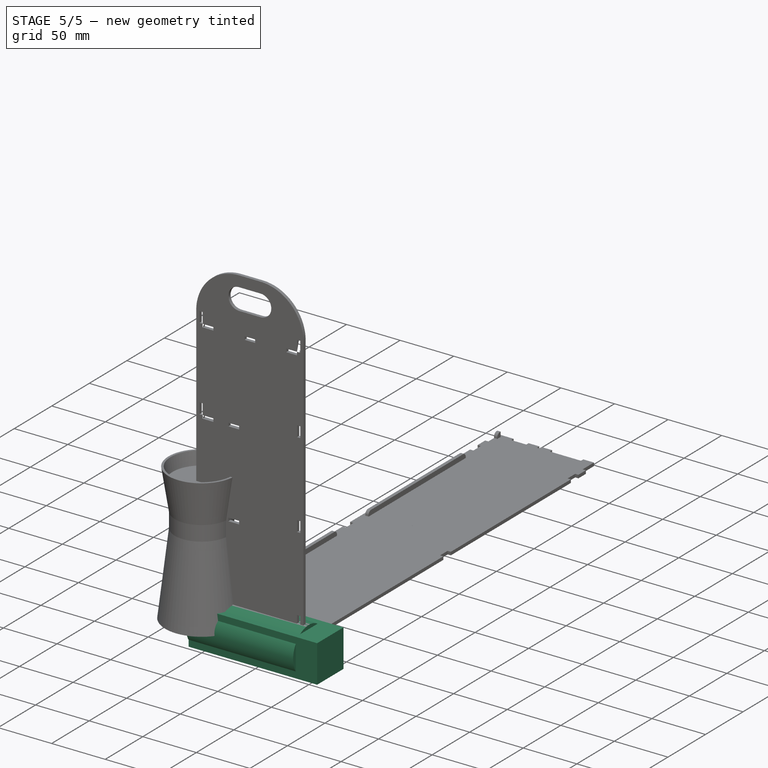
[diagram: stage 5 of 5 — iso view after this stage's code; geometry added in this stage tinted green]
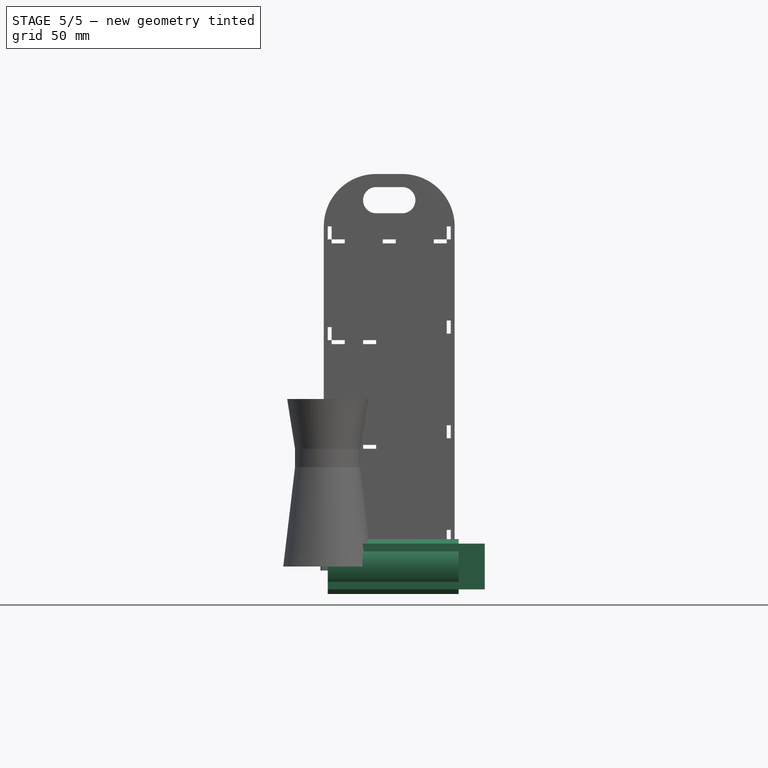
[diagram: stage 5 of 5 — front view after this stage's code; geometry added in this stage tinted green]
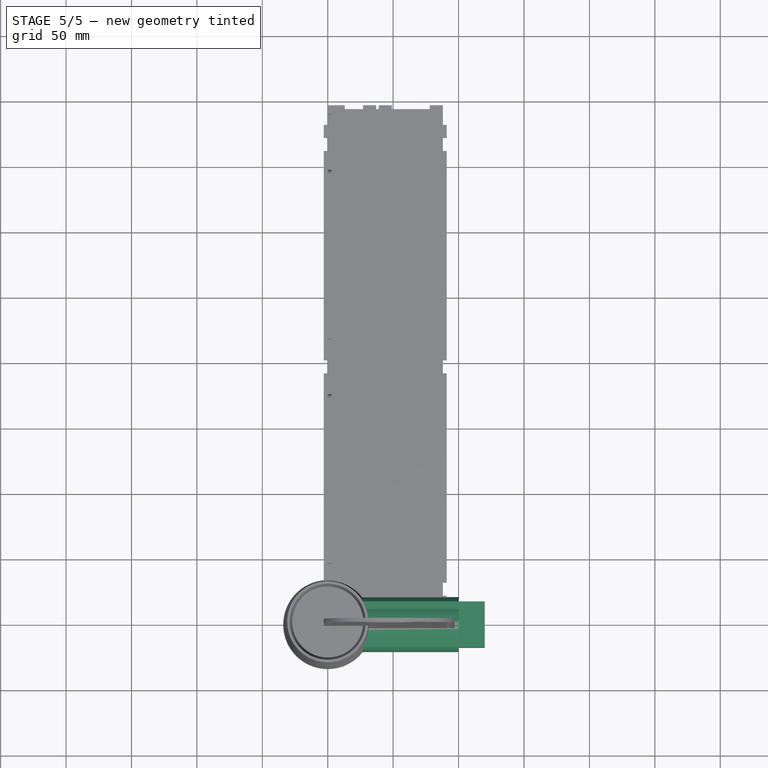
[diagram: stage 5 of 5 — top view after this stage's code; geometry added in this stage tinted green]
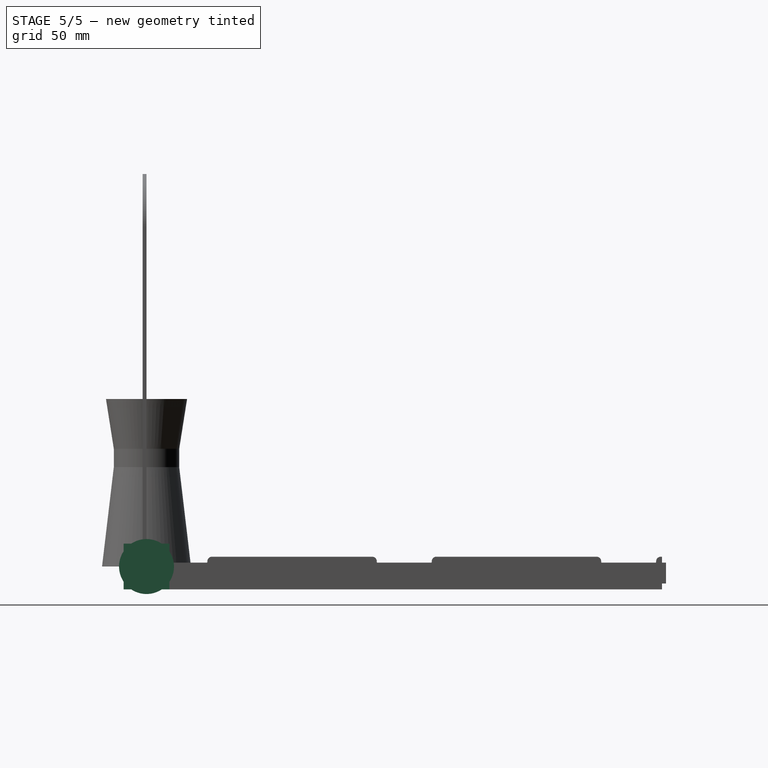
[diagram: stage 5 of 5 — right view after this stage's code; geometry added in this stage tinted green]
FEATURE [Sketcher::SketchObject] Sketch
  ArcFitTolerance = 0
  FullyConstrained = true
  MakeInternals = false
  MapMode = 5
  Placement = pos=(0,0,0) rot=(0.57735,0.57735,0.57735;2.0944rad)
  sketch-geometry (1):
    g0: Circle CenterX=0 CenterY=0 CenterZ=0 NormalX=0 NormalY=0 NormalZ=1 AngleXU=0 Radius=21
  constraints (2):
    c: Diameter(g0) = 42
    c: Coincident(g0,g-1)
FEATURE [PartDesign::Pad] Pad
  Direction = (1,1e-16,-1e-16)
  Length = 100
  Length2 = 10
  Placement = pos=(0,0,0) rot=(0.57735,0.57735,0.57735;2.0944rad)
  Profile = -> Sketch
  Refine = true
  Suppressed = false
  Type = 0
FEATURE [PartDesign::Body] Body  label="Epice_rond"
  AllowCompound = false
  Group = -> [Sketch,Pad]
  Origin = -> Origin
  Placement = pos=(1.62713,25,36.8423) rot=(0,-1,0;0.174533rad)
  Tip = -> Pad
FEATURE [Sketcher::SketchObject] Sketch001
  ArcFitTolerance = 0
  FullyConstrained = true
  MakeInternals = false
  MapMode = 5
  Placement = pos=(0,0,0) rot=(0.57735,0.57735,0.57735;2.0944rad)
  sketch-geometry (5):
    g0: LineSegment StartX=-17.5 StartY=-17.5 StartZ=0 EndX=17.5 EndY=-17.5 EndZ=0
    g1: LineSegment StartX=17.5 StartY=-17.5 StartZ=0 EndX=17.5 EndY=17.5 EndZ=0
    g2: LineSegment StartX=17.5 StartY=17.5 StartZ=0 EndX=-17.5 EndY=17.5 EndZ=0
    g3: LineSegment StartX=-17.5 StartY=17.5 StartZ=0 EndX=-17.5 EndY=-17.5 EndZ=0
    g4: GeomPoint [constr] X=0 Y=0 Z=0
  constraints (12):
    c: Coincident(g0,g1)
    c: Coincident(g1,g2)
    c: Coincident(g2,g3)
    c: Coincident(g3,g0)
    c: Horizontal(g0)
    c: Horizontal(g2)
    c: Vertical(g1)
    c: Vertical(g3)
    c: Symmetric(g2,g0,g4)
    c: Distance(g1,g3) = 35
    c: Distance(g0,g2) = 35
    c: Coincident(g4,g-1)
FEATURE [PartDesign::Pad] Pad001
  Direction = (1,1e-16,-1e-16)
  Length = 120
  Length2 = 10
  Placement = pos=(0,0,0) rot=(0.57735,0.57735,0.57735;2.0944rad)
  Profile = -> Sketch001
  Refine = true
  Suppressed = false
  Type = 0
FEATURE [Sketcher::SketchObject] Sketch003
  ArcFitTolerance = 0
  ExternalGeometry = -> [Pad002]
  FullyConstrained = true
  MakeInternals = false
  MapMode = 5
  Placement = pos=(3,-1e-15,0) rot=(0.57735,0.57735,0.57735;2.0944rad)
  sketch-geometry (6):
    g0: ArcOfCircle CenterX=8 CenterY=4 CenterZ=0 NormalX=0 NormalY=0 NormalZ=1 AngleXU=0 Radius=3.5 StartAngle=3.14159 EndAngle=4.71239
    g1: ArcOfCircle CenterX=50 CenterY=4 CenterZ=0 NormalX=0 NormalY=0 NormalZ=1 AngleXU=0 Radius=3.5 StartAngle=1.5708 EndAngle=3.14159
    g2: ArcOfCircle CenterX=43 CenterY=4 CenterZ=0 NormalX=0 NormalY=0 NormalZ=1 AngleXU=0 Radius=3.5 StartAngle=4.71239 EndAngle=6.28319
    g3: LineSegment StartX=8 StartY=0.500003 StartZ=0 EndX=43 EndY=0.500003 EndZ=0
    g4: LineSegment StartX=1 StartY=7.5 StartZ=0 EndX=50 EndY=7.5 EndZ=0
    g5: ArcOfCircle CenterX=1 CenterY=4 CenterZ=0 NormalX=0 NormalY=0 NormalZ=1 AngleXU=0 Radius=3.5 StartAngle=0 EndAngle=1.5708
  constraints (23):
    c: Coincident(g2,g1)
    c: Coincident(g3,g0)
    c: Coincident(g3,g2)
    c: Equal(g0,g2)
    c: Horizontal(g3)
    c: Vertical(g0,g0)
    c: Vertical(g1,g1)
    c: Coincident(g4,g1)
    c: DistanceX(g0,g1) = 42
    c: DistanceX(g3,g3) = 35
    c: Coincident(g5,g0)
    c: Coincident(g5,g4)
    c: PointOnObject(g4,g-3)
    c: Vertical(g4,g5)
    c: Horizontal(g4)
    c: DistanceX(g-3,g4) = 1
    c: DistanceX(g4,g1) = 49
    c: Horizontal(g1,g0)
    c: Horizontal(g0,g2)
    c: Horizontal(g2,g0)
    c: Horizontal(g2,g5)
    c: Horizontal(g5,g1)
    c: Equal(g5,g0)
FEATURE [PartDesign::Pocket] Pocket
  BaseFeature = -> Pad002
  Direction = (-1,-1e-16,1e-16)
  Length = 0
  Length2 = 5
  Placement = pos=(0,0,0) rot=(0.57735,0.57735,0.57735;2.0944rad)
  Profile = -> Sketch003
  Refine = true
  Suppressed = false
  Type = 2
FEATURE [PartDesign::LinearPattern] LinearPattern
  BaseFeature = -> Pocket
  Direction = -> Sketch003 [H_Axis]
  Length = 343
  Mode = 0
  Occurrences = 3
  Offset = 171.5
  Originals = -> [Pocket]
  Placement = pos=(0,0,0) rot=(0.57735,0.57735,0.57735;2.0944rad)
  Refine = true
  Suppressed = false
  TransformMode = 0
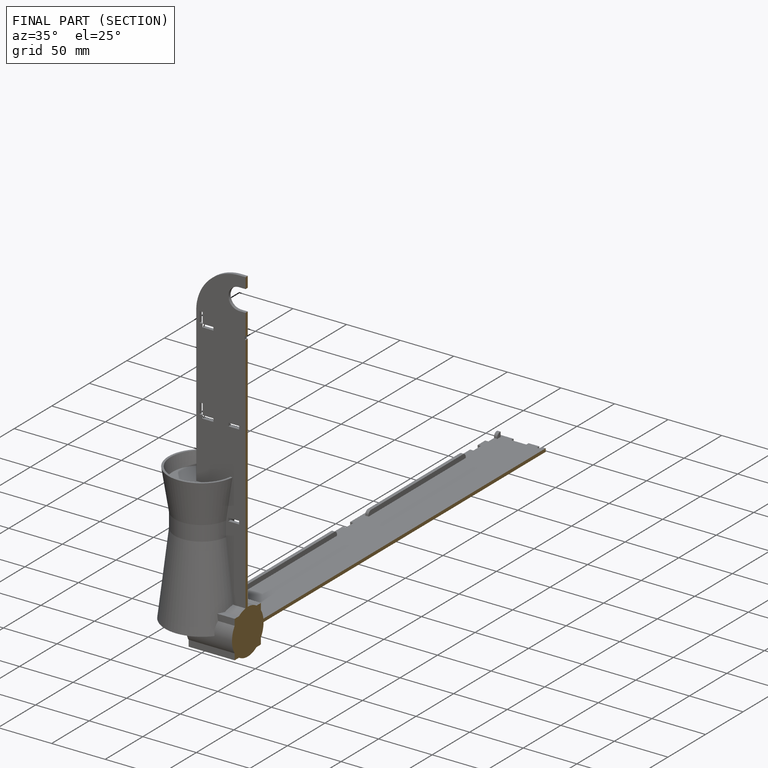
[diagram: finished part — half-section view (interior)]
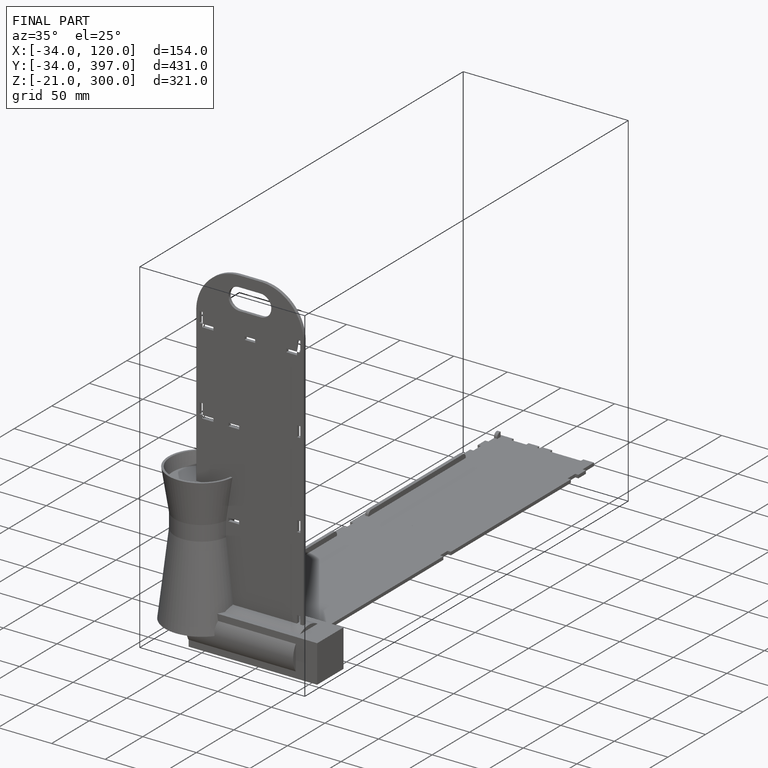
[diagram: finished part — iso view with bounding-box wireframe]
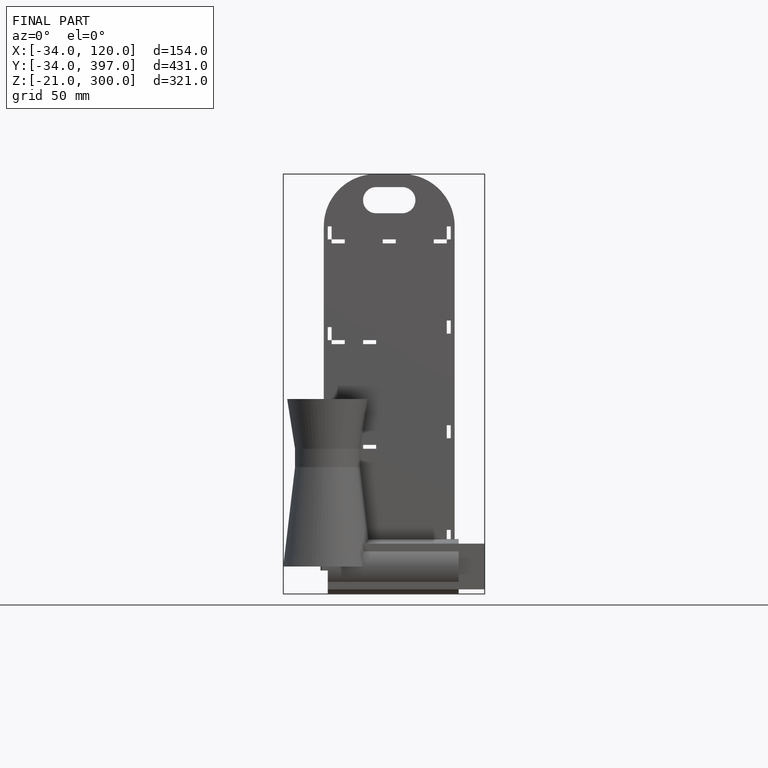
[diagram: finished part — front view with bounding-box wireframe]
